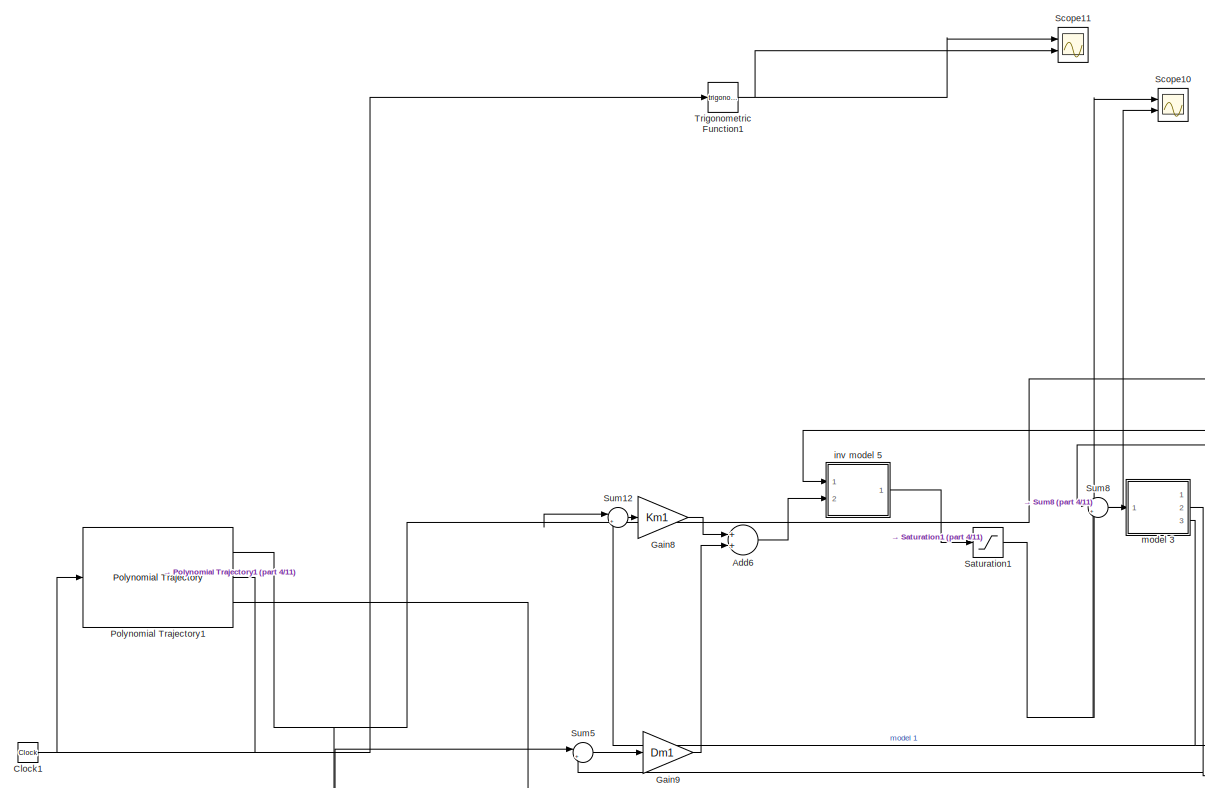
[diagram: root canvas - part 1/11, top right region]
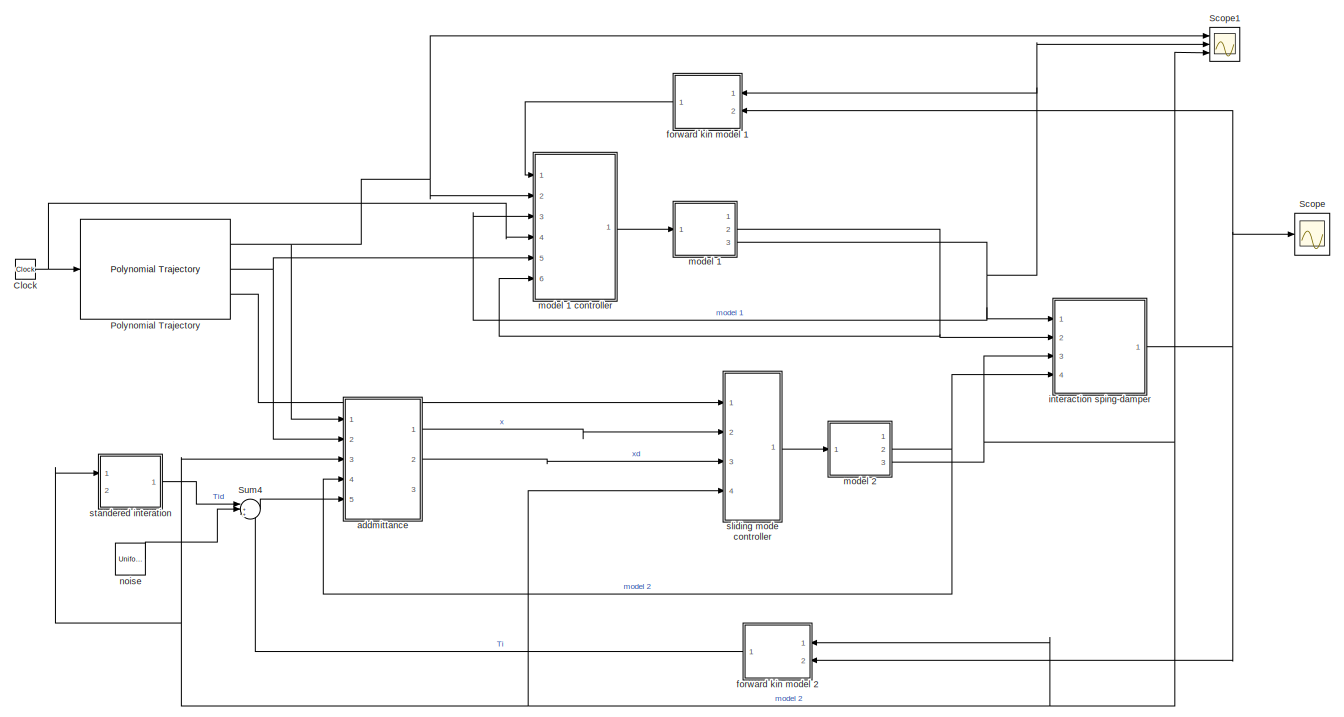
[diagram: root canvas - part 2/11, top left region]
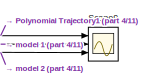
[diagram: root canvas - part 3/11, top right region]
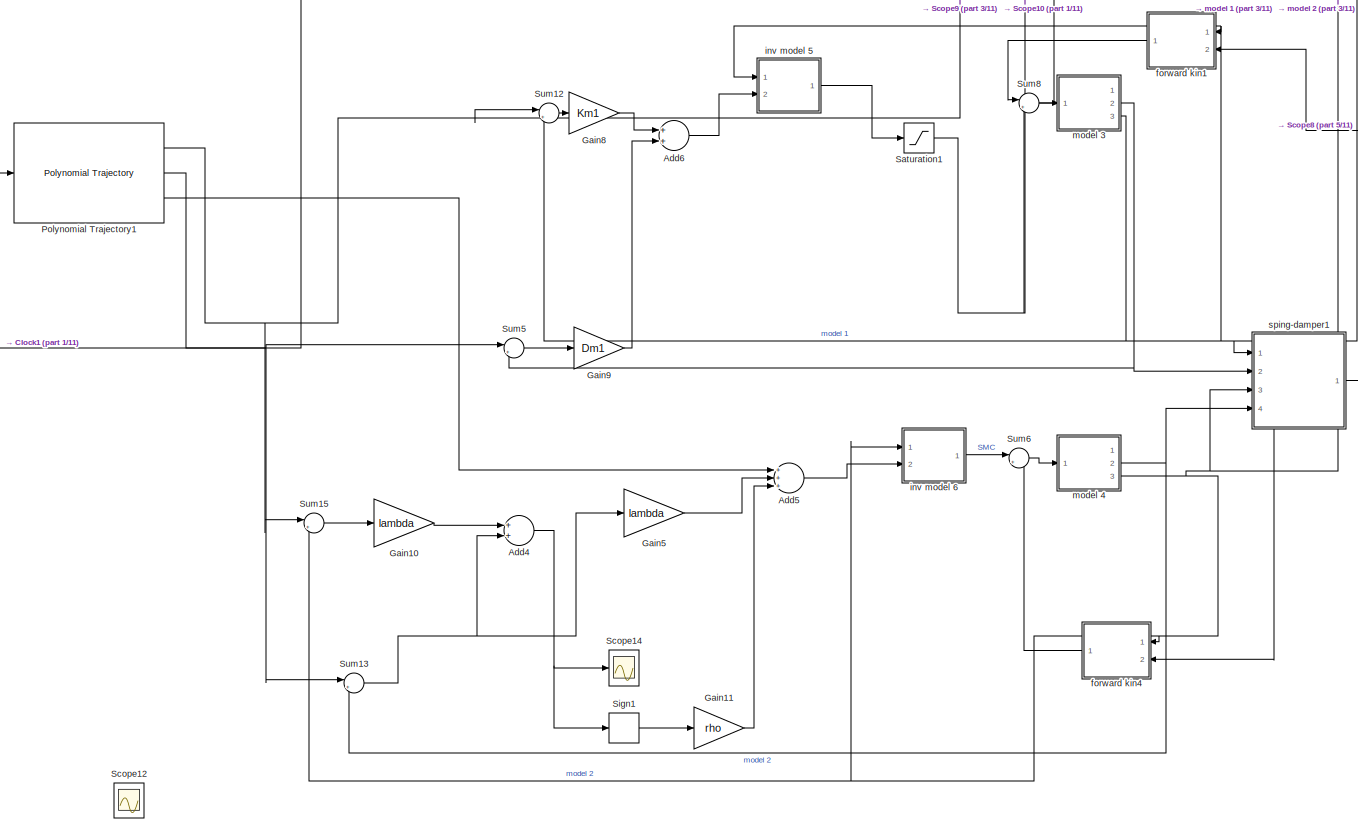
[diagram: root canvas - part 4/11, top right region]
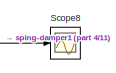
[diagram: root canvas - part 5/11, top right region]
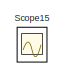
[diagram: root canvas - part 6/11, middle right region]
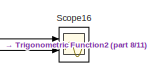
[diagram: root canvas - part 7/11, central region]
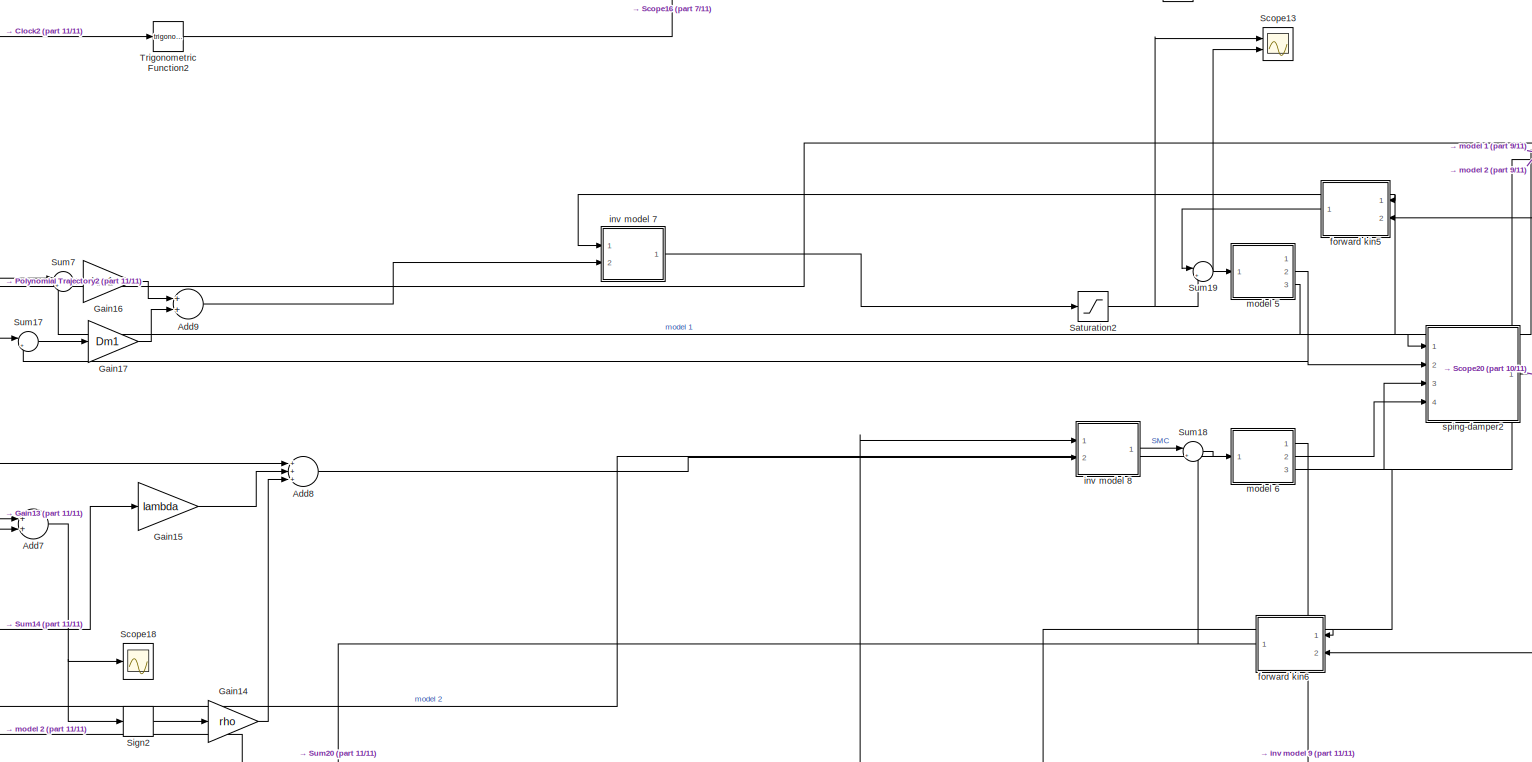
[diagram: root canvas - part 8/11, bottom center region]
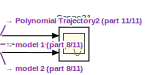
[diagram: root canvas - part 9/11, bottom center region]
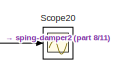
[diagram: root canvas - part 10/11, bottom center region]
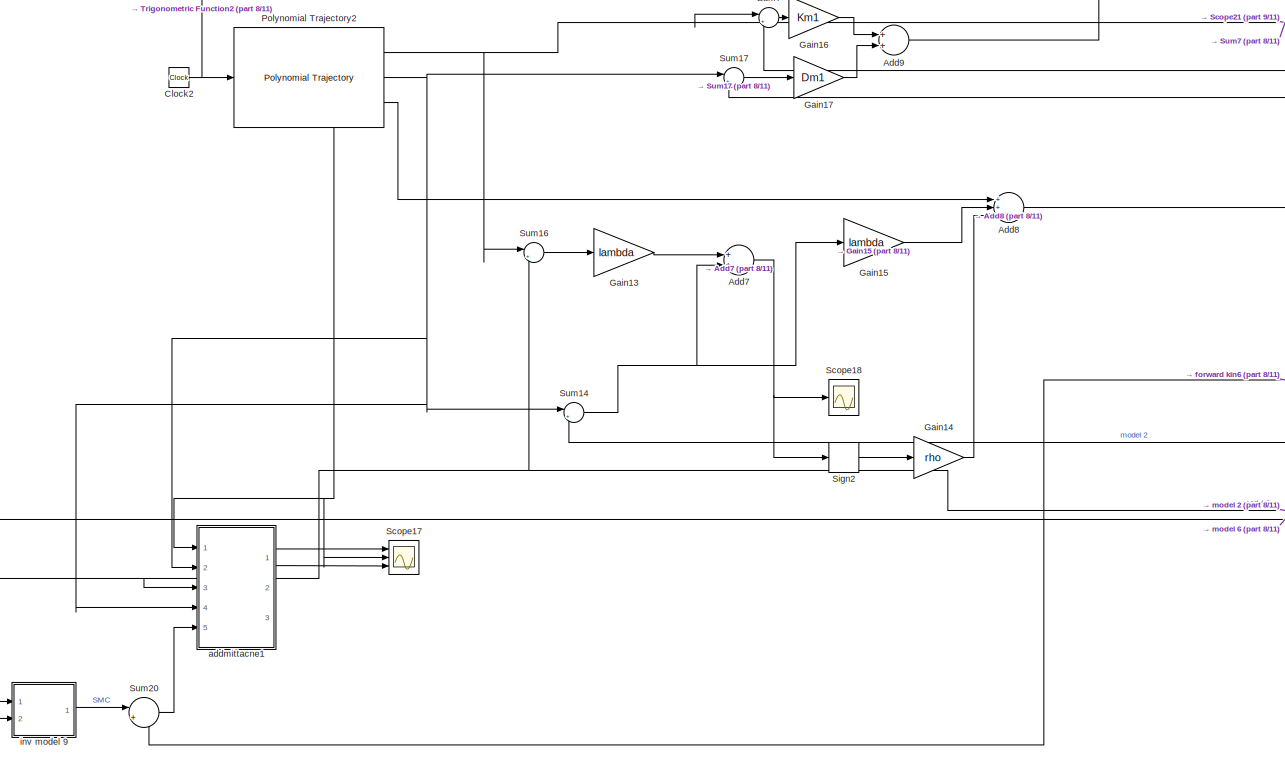
[diagram: root canvas - part 11/11, bottom left region]
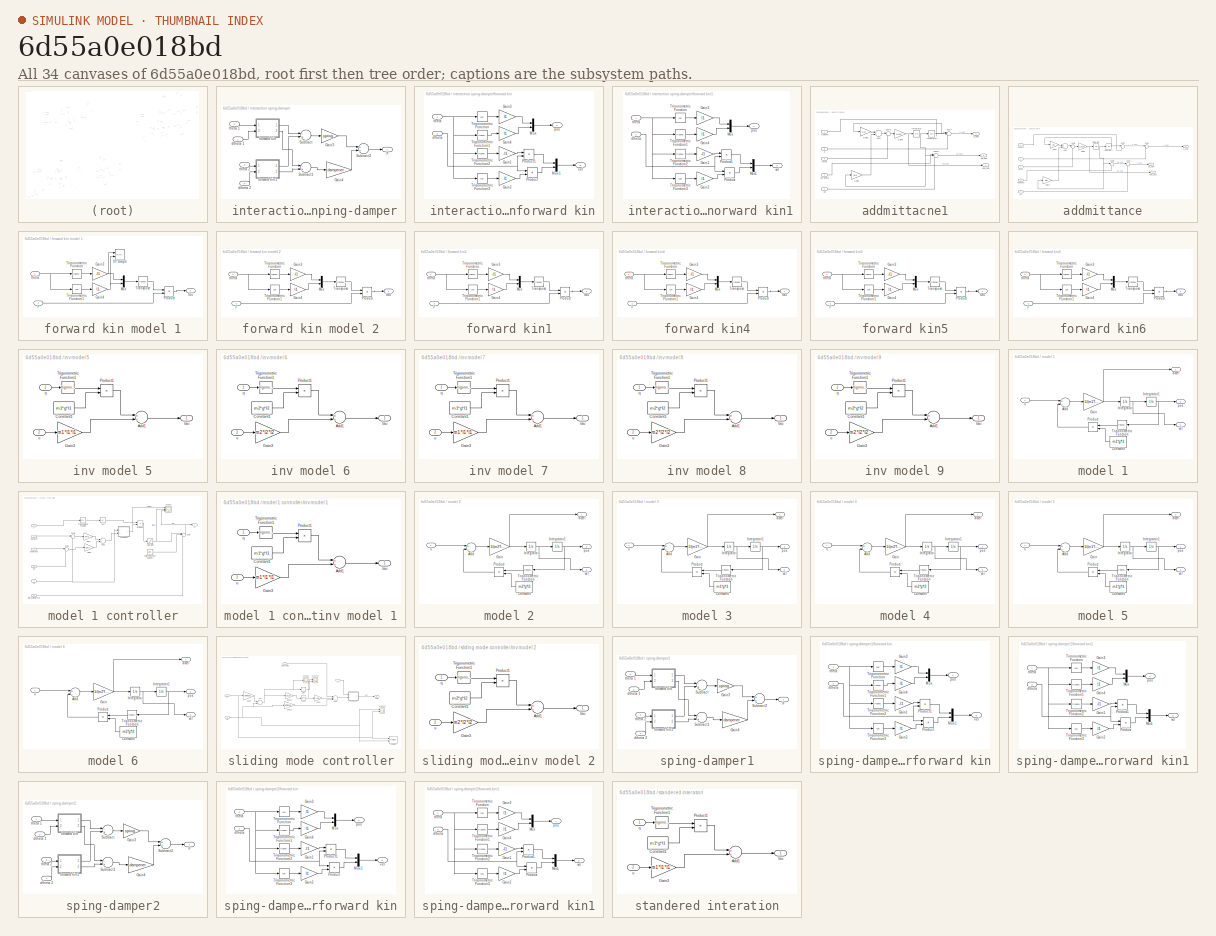
[diagram: thumbnail index - all 34 canvases of the model, root first then tree order]
MODEL slx_6d55a0e018bd
KIND model
CONFIG AbsTol = auto
CONFIG EnableMultiTasking = off
CONFIG FixedStep = auto
CONFIG MaxStep = auto
CONFIG MinStep = auto
CONFIG RelTol = 1e-3
CONFIG SampleTimeConstraint = Unconstrained
CONFIG Solver = VariableStepAuto
CONFIG SolverName = VariableStepAuto
CONFIG StartTime = 0.0
CONFIG StopTime = 10.0
BLOCK [SubSystem]  interaction sping-damper
  Ports = [4, 1]
  RequestExecContextInheritance = off
BLOCK [Outport]  interaction sping-damper/F
  IconDisplay = Port number
BLOCK [Gain]  interaction sping-damper/Gain3
  Gain = spring
  OutDataTypeStr = Inherit: Inherit via internal rule
  ParamDataTypeStr = Inherit: Inherit via internal rule
  SaturateOnIntegerOverflow = off
BLOCK [Gain]  interaction sping-damper/Gain4
  Gain = dampener
  OutDataTypeStr = Inherit: Inherit via internal rule
  ParamDataTypeStr = Inherit: Inherit via internal rule
  SaturateOnIntegerOverflow = off
BLOCK [Sum]  interaction sping-damper/Subtract
  InputSameDT = off
  Inputs = -+
  OutDataTypeStr = Inherit: Inherit via internal rule
  Ports = [2, 1]
  SaturateOnIntegerOverflow = off
BLOCK [Sum]  interaction sping-damper/Subtract1
  InputSameDT = off
  Inputs = -+
  OutDataTypeStr = Inherit: Inherit via internal rule
  Ports = [2, 1]
  SaturateOnIntegerOverflow = off
BLOCK [Sum]  interaction sping-damper/Subtract2
  InputSameDT = off
  OutDataTypeStr = Inherit: Inherit via internal rule
  Ports = [2, 1]
  SaturateOnIntegerOverflow = off
BLOCK [Inport]  interaction sping-damper/dtheta 1
  IconDisplay = Port number
  Port = 2
BLOCK [Inport]  interaction sping-damper/dtheta 2
  IconDisplay = Port number
  Port = 4
BLOCK [SubSystem]  interaction sping-damper/forward kin
  Ports = [2, 2]
  RequestExecContextInheritance = off
BLOCK [Gain]  interaction sping-damper/forward kin/Gain1
  Gain = -l1
  OutDataTypeStr = Inherit: Inherit via internal rule
  ParamDataTypeStr = Inherit: Inherit via internal rule
  SaturateOnIntegerOverflow = off
BLOCK [Gain]  interaction sping-damper/forward kin/Gain2
  Gain = l1
  OutDataTypeStr = Inherit: Inherit via internal rule
  ParamDataTypeStr = Inherit: Inherit via internal rule
  SaturateOnIntegerOverflow = off
BLOCK [Gain]  interaction sping-damper/forward kin/Gain3
  Gain = l1
  OutDataTypeStr = Inherit: Inherit via internal rule
  ParamDataTypeStr = Inherit: Inherit via internal rule
  SaturateOnIntegerOverflow = off
BLOCK [Gain]  interaction sping-damper/forward kin/Gain4
  Gain = l1
  OutDataTypeStr = Inherit: Inherit via internal rule
  ParamDataTypeStr = Inherit: Inherit via internal rule
  SaturateOnIntegerOverflow = off
BLOCK [Mux]  interaction sping-damper/forward kin/Mux
  DisplayOption = bar
  Inputs = 2
  Ports = [2, 1]
BLOCK [Mux]  interaction sping-damper/forward kin/Mux1
  DisplayOption = bar
  Inputs = 2
  Ports = [2, 1]
BLOCK [Product]  interaction sping-damper/forward kin/Product
  InputSameDT = off
  OutDataTypeStr = Inherit: Inherit via internal rule
  Ports = [2, 1]
  RndMeth = Floor
  SaturateOnIntegerOverflow = off
BLOCK [Product]  interaction sping-damper/forward kin/Product1
  InputSameDT = off
  OutDataTypeStr = Inherit: Inherit via internal rule
  Ports = [2, 1]
  RndMeth = Floor
  SaturateOnIntegerOverflow = off
BLOCK [Trigonometry]  interaction sping-damper/forward kin/Trigonometric Function
  Operator = cos
  Ports = [1, 1]
BLOCK [Trigonometry]  interaction sping-damper/forward kin/Trigonometric Function1
  Ports = [1, 1]
BLOCK [Trigonometry]  interaction sping-damper/forward kin/Trigonometric Function2
  Ports = [1, 1]
BLOCK [Trigonometry]  interaction sping-damper/forward kin/Trigonometric Function3
  Operator = cos
  Ports = [1, 1]
BLOCK [Inport]  interaction sping-damper/forward kin/dtheta 
  IconDisplay = Port number
  Port = 2
BLOCK [Outport]  interaction sping-damper/forward kin/pos
  IconDisplay = Port number
BLOCK [Inport]  interaction sping-damper/forward kin/theta 
  IconDisplay = Port number
BLOCK [Outport]  interaction sping-damper/forward kin/vel
  IconDisplay = Port number
  Port = 2
BLOCK [SubSystem]  interaction sping-damper/forward kin1
  Ports = [2, 2]
  RequestExecContextInheritance = off
BLOCK [Gain]  interaction sping-damper/forward kin1/Gain1
  Gain = -l1
  OutDataTypeStr = Inherit: Inherit via internal rule
  ParamDataTypeStr = Inherit: Inherit via internal rule
  SaturateOnIntegerOverflow = off
BLOCK [Gain]  interaction sping-damper/forward kin1/Gain2
  Gain = l1
  OutDataTypeStr = Inherit: Inherit via internal rule
  ParamDataTypeStr = Inherit: Inherit via internal rule
  SaturateOnIntegerOverflow = off
BLOCK [Gain]  interaction sping-damper/forward kin1/Gain3
  Gain = l1
  OutDataTypeStr = Inherit: Inherit via internal rule
  ParamDataTypeStr = Inherit: Inherit via internal rule
  SaturateOnIntegerOverflow = off
BLOCK [Gain]  interaction sping-damper/forward kin1/Gain4
  Gain = l1
  OutDataTypeStr = Inherit: Inherit via internal rule
  ParamDataTypeStr = Inherit: Inherit via internal rule
  SaturateOnIntegerOverflow = off
BLOCK [Mux]  interaction sping-damper/forward kin1/Mux
  DisplayOption = bar
  Inputs = 2
  Ports = [2, 1]
BLOCK [Mux]  interaction sping-damper/forward kin1/Mux1
  DisplayOption = bar
  Inputs = 2
  Ports = [2, 1]
BLOCK [Product]  interaction sping-damper/forward kin1/Product
  InputSameDT = off
  OutDataTypeStr = Inherit: Inherit via internal rule
  Ports = [2, 1]
  RndMeth = Floor
  SaturateOnIntegerOverflow = off
BLOCK [Product]  interaction sping-damper/forward kin1/Product1
  InputSameDT = off
  OutDataTypeStr = Inherit: Inherit via internal rule
  Ports = [2, 1]
  RndMeth = Floor
  SaturateOnIntegerOverflow = off
BLOCK [Trigonometry]  interaction sping-damper/forward kin1/Trigonometric Function
  Operator = cos
  Ports = [1, 1]
BLOCK [Trigonometry]  interaction sping-damper/forward kin1/Trigonometric Function1
  Ports = [1, 1]
BLOCK [Trigonometry]  interaction sping-damper/forward kin1/Trigonometric Function2
  Ports = [1, 1]
BLOCK [Trigonometry]  interaction sping-damper/forward kin1/Trigonometric Function3
  Operator = cos
  Ports = [1, 1]
BLOCK [Inport]  interaction sping-damper/forward kin1/dtheta 
  IconDisplay = Port number
  Port = 2
BLOCK [Outport]  interaction sping-damper/forward kin1/pos
  IconDisplay = Port number
BLOCK [Inport]  interaction sping-damper/forward kin1/theta 
  IconDisplay = Port number
BLOCK [Outport]  interaction sping-damper/forward kin1/vel
  IconDisplay = Port number
  Port = 2
BLOCK [Inport]  interaction sping-damper/theta 1
  IconDisplay = Port number
BLOCK [Inport]  interaction sping-damper/theta 2
  IconDisplay = Port number
  Port = 3
BLOCK [Sum] Add4
  Commented = on
  InputSameDT = off
  OutDataTypeStr = Inherit: Inherit via internal rule
  Ports = [2, 1]
  SaturateOnIntegerOverflow = off
BLOCK [Sum] Add5
  Commented = on
  InputSameDT = off
  Inputs = +++
  OutDataTypeStr = Inherit: Inherit via internal rule
  Ports = [3, 1]
  SaturateOnIntegerOverflow = off
BLOCK [Sum] Add6
  Commented = on
  InputSameDT = off
  OutDataTypeStr = Inherit: Inherit via internal rule
  Ports = [2, 1]
  SaturateOnIntegerOverflow = off
BLOCK [Sum] Add7
  Commented = on
  InputSameDT = off
  OutDataTypeStr = Inherit: Inherit via internal rule
  Ports = [2, 1]
  SaturateOnIntegerOverflow = off
BLOCK [Sum] Add8
  Commented = on
  InputSameDT = off
  Inputs = +++
  OutDataTypeStr = Inherit: Inherit via internal rule
  Ports = [3, 1]
  SaturateOnIntegerOverflow = off
BLOCK [Sum] Add9
  Commented = on
  InputSameDT = off
  OutDataTypeStr = Inherit: Inherit via internal rule
  Ports = [2, 1]
  SaturateOnIntegerOverflow = off
BLOCK [Clock] Clock
BLOCK [Clock] Clock1
  Commented = on
BLOCK [Clock] Clock2
  Commented = on
BLOCK [Gain] Gain10
  Commented = on
  Gain = lambda
  OutDataTypeStr = Inherit: Inherit via internal rule
  ParamDataTypeStr = Inherit: Inherit via internal rule
  SaturateOnIntegerOverflow = off
BLOCK [Gain] Gain11
  Commented = on
  Gain = rho
  OutDataTypeStr = Inherit: Inherit via internal rule
  ParamDataTypeStr = Inherit: Inherit via internal rule
  SaturateOnIntegerOverflow = off
BLOCK [Gain] Gain13
  Commented = on
  Gain = lambda
  OutDataTypeStr = Inherit: Inherit via internal rule
  ParamDataTypeStr = Inherit: Inherit via internal rule
  SaturateOnIntegerOverflow = off
BLOCK [Gain] Gain14
  Commented = on
  Gain = rho
  OutDataTypeStr = Inherit: Inherit via internal rule
  ParamDataTypeStr = Inherit: Inherit via internal rule
  SaturateOnIntegerOverflow = off
BLOCK [Gain] Gain15
  Commented = on
  Gain = lambda
  OutDataTypeStr = Inherit: Inherit via internal rule
  ParamDataTypeStr = Inherit: Inherit via internal rule
  SaturateOnIntegerOverflow = off
BLOCK [Gain] Gain16
  Commented = on
  Gain = Km1
  OutDataTypeStr = Inherit: Inherit via internal rule
  ParamDataTypeStr = Inherit: Inherit via internal rule
  SaturateOnIntegerOverflow = off
BLOCK [Gain] Gain17
  Commented = on
  Gain = Dm1
  OutDataTypeStr = Inherit: Inherit via internal rule
  ParamDataTypeStr = Inherit: Inherit via internal rule
  SaturateOnIntegerOverflow = off
BLOCK [Gain] Gain5
  Commented = on
  Gain = lambda
  OutDataTypeStr = Inherit: Inherit via internal rule
  ParamDataTypeStr = Inherit: Inherit via internal rule
  SaturateOnIntegerOverflow = off
BLOCK [Gain] Gain8
  Commented = on
  Gain = Km1
  OutDataTypeStr = Inherit: Inherit via internal rule
  ParamDataTypeStr = Inherit: Inherit via internal rule
  SaturateOnIntegerOverflow = off
BLOCK [Gain] Gain9
  Commented = on
  Gain = Dm1
  OutDataTypeStr = Inherit: Inherit via internal rule
  ParamDataTypeStr = Inherit: Inherit via internal rule
  SaturateOnIntegerOverflow = off
BLOCK [Reference] Polynomial Trajectory  REF=robotcorelib/Polynomial Trajectory
  Ports = [1, 3]
  SourceBlock = robotcorelib/Polynomial Trajectory
  SourceProductBaseCode = RO
  SourceProductName = Robotics System Toolbox
  SourceType = robotics.slcore.internal.block.PolyTrajSys
BLOCK [Reference] Polynomial Trajectory1  REF=robotcorelib/Polynomial Trajectory
  Commented = on
  Ports = [1, 3]
  SourceBlock = robotcorelib/Polynomial Trajectory
  SourceProductBaseCode = RO
  SourceProductName = Robotics System Toolbox
  SourceType = robotics.slcore.internal.block.PolyTrajSys
BLOCK [Reference] Polynomial Trajectory2  REF=robotcorelib/Polynomial Trajectory
  Commented = on
  Ports = [1, 3]
  SourceBlock = robotcorelib/Polynomial Trajectory
  SourceProductBaseCode = RO
  SourceProductName = Robotics System Toolbox
  SourceType = robotics.slcore.internal.block.PolyTrajSys
BLOCK [Saturate] Saturation1
  Commented = on
  InputPortMap = u0
  LowerLimit = -1.0
  Ports = [1, 1]
  UpperLimit = 1.0
BLOCK [Saturate] Saturation2
  Commented = on
  InputPortMap = u0
  LowerLimit = -1.0
  Ports = [1, 1]
  UpperLimit = 1.0
BLOCK [Scope] Scope
  Floating = off
  NumInputPorts = 1
  Ports = [1]
  ScopeSpecificationString = Simulink.scopes.TimeScopeBlockCfg('CurrentConfiguration', extmgr.ConfigurationSet(extmgr.Configuration('Core','General UI',true),extmgr.Configuration('Core','Source UI',true),extmgr.Configuration('Sources','WiredSimulink',true,'DataLoggingVariableName','ScopeData1'),extmgr.Configuration('Visuals','Time Domain',true,'SerializedDisplays',{struct('MinYLimReal','-10.50339','MaxYLimReal','20.02918','YL...<+1448ch>
BLOCK [Scope] Scope1
  Floating = off
  NumInputPorts = 3
  Ports = [3]
  ScopeSpecificationString = Simulink.scopes.TimeScopeBlockCfg('CurrentConfiguration', extmgr.ConfigurationSet(extmgr.Configuration('Core','General UI',true),extmgr.Configuration('Core','Source UI',true),extmgr.Configuration('Sources','WiredSimulink',true,'DataLoggingVariableName','ScopeData2'),extmgr.Configuration('Visuals','Time Domain',true,'SerializedDisplays',{struct('MinYLimReal','-3.54168','MaxYLimReal','0.45903','YLab...<+1514ch>
BLOCK [Scope] Scope10
  Commented = on
  Floating = off
  NumInputPorts = 2
  Ports = [2]
  ScopeSpecificationString = Simulink.scopes.TimeScopeBlockCfg('CurrentConfiguration', extmgr.ConfigurationSet(extmgr.Configuration('Core','General UI',true),extmgr.Configuration('Core','Source UI',true),extmgr.Configuration('Sources','WiredSimulink',true,'DataLoggingVariableName','ScopeData1'),extmgr.Configuration('Visuals','Time Domain',true,'SerializedDisplays',{struct('MinYLimReal','-11.52009','MaxYLimReal','5.83051','YLa...<+1406ch>
BLOCK [Scope] Scope11
  Commented = on
  Floating = off
  NumInputPorts = 2
  Ports = [2]
  ScopeSpecificationString = Simulink.scopes.TimeScopeBlockCfg('CurrentConfiguration', extmgr.ConfigurationSet(extmgr.Configuration('Core','General UI',true),extmgr.Configuration('Core','Source UI',true),extmgr.Configuration('Sources','WiredSimulink',true,'DataLoggingVariableName','ScopeData2'),extmgr.Configuration('Visuals','Time Domain',true,'SerializedDisplays',{struct('MinYLimReal','-1.24869','MaxYLimReal','1.24897','YLab...<+1492ch>
BLOCK [Scope] Scope12
  Commented = on
  Floating = off
  NumInputPorts = 2
  Ports = [2]
  ScopeSpecificationString = Simulink.scopes.TimeScopeBlockCfg('CurrentConfiguration', extmgr.ConfigurationSet(extmgr.Configuration('Core','General UI',true),extmgr.Configuration('Core','Source UI',true),extmgr.Configuration('Sources','WiredSimulink',true,'DataLoggingVariableName','ScopeData3'),extmgr.Configuration('Visuals','Time Domain',true,'SerializedDisplays',{struct('MinYLimReal','-3.65929','MaxYLimReal','1.5177','YLabe...<+1419ch>
BLOCK [Scope] Scope13
  Commented = on
  Floating = off
  NumInputPorts = 2
  Ports = [2]
  ScopeSpecificationString = Simulink.scopes.TimeScopeBlockCfg('CurrentConfiguration', extmgr.ConfigurationSet(extmgr.Configuration('Core','General UI',true),extmgr.Configuration('Core','Source UI',true),extmgr.Configuration('Sources','WiredSimulink',true,'DataLoggingVariableName','ScopeData4'),extmgr.Configuration('Visuals','Time Domain',true,'SerializedDisplays',{struct('MinYLimReal','-11.52009','MaxYLimReal','5.83051','YLa...<+1406ch>
BLOCK [Scope] Scope14
  Commented = on
  Floating = off
  NumInputPorts = 1
  Ports = [1]
  ScopeSpecificationString = Simulink.scopes.TimeScopeBlockCfg('CurrentConfiguration', extmgr.ConfigurationSet(extmgr.Configuration('Core','General UI',true),extmgr.Configuration('Core','Source UI',true),extmgr.Configuration('Sources','WiredSimulink',true,'DataLoggingVariableName','ScopeData5'),extmgr.Configuration('Visuals','Time Domain',true,'SerializedDisplays',{struct('MinYLimReal','-0.66726','MaxYLimReal','6.00513','YLab...<+1387ch>
BLOCK [Scope] Scope15
  Commented = on
  Floating = off
  NumInputPorts = 2
  Ports = [2]
  ScopeSpecificationString = Simulink.scopes.TimeScopeBlockCfg('CurrentConfiguration', extmgr.ConfigurationSet(extmgr.Configuration('Core','General UI',true),extmgr.Configuration('Core','Source UI',true),extmgr.Configuration('Sources','WiredSimulink',true,'DataLoggingVariableName','ScopeData6'),extmgr.Configuration('Visuals','Time Domain',true,'SerializedDisplays',{struct('MinYLimReal','-0.12527','MaxYLimReal','1.12746','YLab...<+1393ch>
BLOCK [Scope] Scope16
  Commented = on
  Floating = off
  NumInputPorts = 2
  Ports = [2]
  ScopeSpecificationString = Simulink.scopes.TimeScopeBlockCfg('CurrentConfiguration', extmgr.ConfigurationSet(extmgr.Configuration('Core','General UI',true),extmgr.Configuration('Core','Source UI',true),extmgr.Configuration('Sources','WiredSimulink',true,'DataLoggingVariableName','ScopeData9'),extmgr.Configuration('Visuals','Time Domain',true,'SerializedDisplays',{struct('MinYLimReal','-1.24869','MaxYLimReal','1.24897','YLab...<+1492ch>
BLOCK [Scope] Scope17
  Commented = on
  Floating = off
  NumInputPorts = 3
  Ports = [3]
  ScopeSpecificationString = Simulink.scopes.TimeScopeBlockCfg('CurrentConfiguration', extmgr.ConfigurationSet(extmgr.Configuration('Core','General UI',true),extmgr.Configuration('Core','Source UI',true),extmgr.Configuration('Sources','WiredSimulink',true,'DataLoggingVariableName','ScopeData10'),extmgr.Configuration('Visuals','Time Domain',true,'SerializedDisplays',{struct('MinYLimReal','-10.10896','MaxYLimReal','8.77223','YL...<+1530ch>
BLOCK [Scope] Scope18
  Commented = on
  Floating = off
  NumInputPorts = 1
  Ports = [1]
  ScopeSpecificationString = Simulink.scopes.TimeScopeBlockCfg('CurrentConfiguration', extmgr.ConfigurationSet(extmgr.Configuration('Core','General UI',true),extmgr.Configuration('Core','Source UI',true),extmgr.Configuration('Sources','WiredSimulink',true,'DataLoggingVariableName','ScopeData11'),extmgr.Configuration('Visuals','Time Domain',true,'SerializedDisplays',{struct('MinYLimReal','-0.02538','MaxYLimReal','0.22828','YLa...<+1388ch>
BLOCK [Scope] Scope20
  Commented = on
  Floating = off
  NumInputPorts = 1
  Ports = [1]
  ScopeSpecificationString = Simulink.scopes.TimeScopeBlockCfg('CurrentConfiguration', extmgr.ConfigurationSet(extmgr.Configuration('Core','General UI',true),extmgr.Configuration('Core','Source UI',true),extmgr.Configuration('Sources','WiredSimulink',true,'DataLoggingVariableName','ScopeData13'),extmgr.Configuration('Visuals','Time Domain',true,'SerializedDisplays',{struct('MinYLimReal','-21982.80538','MaxYLimReal','24802.824...<+1447ch>
BLOCK [Scope] Scope21
  Commented = on
  Floating = off
  NumInputPorts = 3
  Ports = [3]
  ScopeSpecificationString = Simulink.scopes.TimeScopeBlockCfg('CurrentConfiguration', extmgr.ConfigurationSet(extmgr.Configuration('Core','General UI',true),extmgr.Configuration('Core','Source UI',true),extmgr.Configuration('Sources','WiredSimulink',true,'DataLoggingVariableName','ScopeData14'),extmgr.Configuration('Visuals','Time Domain',true,'SerializedDisplays',{struct('MinYLimReal','-10.10896','MaxYLimReal','1.80706','YL...<+1522ch>
BLOCK [Scope] Scope8
  Commented = on
  Floating = off
  NumInputPorts = 1
  Ports = [1]
  ScopeSpecificationString = Simulink.scopes.TimeScopeBlockCfg('CurrentConfiguration', extmgr.ConfigurationSet(extmgr.Configuration('Core','General UI',true),extmgr.Configuration('Core','Source UI',true),extmgr.Configuration('Sources','WiredSimulink',true,'DataLoggingVariableName','ScopeData7'),extmgr.Configuration('Visuals','Time Domain',true,'SerializedDisplays',{struct('MinYLimReal','-21982.80538','MaxYLimReal','24802.8241...<+1446ch>
BLOCK [Scope] Scope9
  Commented = on
  Floating = off
  NumInputPorts = 3
  Ports = [3]
  ScopeSpecificationString = Simulink.scopes.TimeScopeBlockCfg('CurrentConfiguration', extmgr.ConfigurationSet(extmgr.Configuration('Core','General UI',true),extmgr.Configuration('Core','Source UI',true),extmgr.Configuration('Sources','WiredSimulink',true,'DataLoggingVariableName','ScopeData8'),extmgr.Configuration('Visuals','Time Domain',true,'SerializedDisplays',{struct('MinYLimReal','-10.10896','MaxYLimReal','1.80706','YLa...<+1521ch>
BLOCK [Signum] Sign1
  Commented = on
BLOCK [Signum] Sign2
  Commented = on
BLOCK [Sum] Sum12
  Commented = on
  IconShape = round
  InputSameDT = off
  Inputs = |+-
  OutDataTypeStr = Inherit: Inherit via internal rule
  Ports = [2, 1]
  SaturateOnIntegerOverflow = off
BLOCK [Sum] Sum13
  Commented = on
  IconShape = round
  InputSameDT = off
  Inputs = |+-
  OutDataTypeStr = Inherit: Inherit via internal rule
  Ports = [2, 1]
  SaturateOnIntegerOverflow = off
BLOCK [Sum] Sum14
  Commented = on
  IconShape = round
  InputSameDT = off
  Inputs = |+-
  OutDataTypeStr = Inherit: Inherit via internal rule
  Ports = [2, 1]
  SaturateOnIntegerOverflow = off
BLOCK [Sum] Sum15
  Commented = on
  IconShape = round
  InputSameDT = off
  Inputs = |+-
  OutDataTypeStr = Inherit: Inherit via internal rule
  Ports = [2, 1]
  SaturateOnIntegerOverflow = off
BLOCK [Sum] Sum16
  Commented = on
  IconShape = round
  InputSameDT = off
  Inputs = |+-
  OutDataTypeStr = Inherit: Inherit via internal rule
  Ports = [2, 1]
  SaturateOnIntegerOverflow = off
BLOCK [Sum] Sum17
  Commented = on
  IconShape = round
  InputSameDT = off
  Inputs = |+-
  OutDataTypeStr = Inherit: Inherit via internal rule
  Ports = [2, 1]
  SaturateOnIntegerOverflow = off
BLOCK [Sum] Sum18
  Commented = on
  IconShape = round
  InputSameDT = off
  Inputs = |+-
  OutDataTypeStr = Inherit: Inherit via internal rule
  Ports = [2, 1]
  SaturateOnIntegerOverflow = off
BLOCK [Sum] Sum19
  Commented = on
  IconShape = round
  InputSameDT = off
  Inputs = |++
  OutDataTypeStr = Inherit: Inherit via internal rule
  Ports = [2, 1]
  SaturateOnIntegerOverflow = off
BLOCK [Sum] Sum20
  Commented = on
  IconShape = round
  InputSameDT = off
  Inputs = |+-
  OutDataTypeStr = Inherit: Inherit via internal rule
  Ports = [2, 1]
  SaturateOnIntegerOverflow = off
BLOCK [Sum] Sum4
  IconShape = round
  InputSameDT = off
  Inputs = |++-
  OutDataTypeStr = Inherit: Inherit via internal rule
  Ports = [3, 1]
  SaturateOnIntegerOverflow = off
BLOCK [Sum] Sum5
  Commented = on
  IconShape = round
  InputSameDT = off
  Inputs = |+-
  OutDataTypeStr = Inherit: Inherit via internal rule
  Ports = [2, 1]
  SaturateOnIntegerOverflow = off
BLOCK [Sum] Sum6
  Commented = on
  IconShape = round
  InputSameDT = off
  Inputs = |+-
  OutDataTypeStr = Inherit: Inherit via internal rule
  Ports = [2, 1]
  SaturateOnIntegerOverflow = off
BLOCK [Sum] Sum7
  Commented = on
  IconShape = round
  InputSameDT = off
  Inputs = |+-
  OutDataTypeStr = Inherit: Inherit via internal rule
  Ports = [2, 1]
  SaturateOnIntegerOverflow = off
BLOCK [Sum] Sum8
  Commented = on
  IconShape = round
  InputSameDT = off
  Inputs = |++
  OutDataTypeStr = Inherit: Inherit via internal rule
  Ports = [2, 1]
  SaturateOnIntegerOverflow = off
BLOCK [Trigonometry] Trigonometric Function1
  Commented = on
  Ports = [1, 1]
BLOCK [Trigonometry] Trigonometric Function2
  Commented = on
  Ports = [1, 1]
BLOCK [SubSystem] addmittacne1
  Commented = on
  Ports = [5, 3]
  RequestExecContextInheritance = off
BLOCK [Sum] addmittacne1/Add1
  InputSameDT = off
  OutDataTypeStr = Inherit: Inherit via internal rule
  Ports = [2, 1]
  SaturateOnIntegerOverflow = off
BLOCK [Gain] addmittacne1/Gain3
  Gain = Kd
  OutDataTypeStr = Inherit: Inherit via internal rule
  ParamDataTypeStr = Inherit: Inherit via internal rule
  SaturateOnIntegerOverflow = off
BLOCK [Gain] addmittacne1/Gain4
  Gain = Bd
  OutDataTypeStr = Inherit: Inherit via internal rule
  ParamDataTypeStr = Inherit: Inherit via internal rule
  SaturateOnIntegerOverflow = off
BLOCK [Gain] addmittacne1/Gain5
  Gain = 1/Md
  OutDataTypeStr = Inherit: Inherit via internal rule
  ParamDataTypeStr = Inherit: Inherit via internal rule
  SaturateOnIntegerOverflow = off
BLOCK [Integrator] addmittacne1/Integrator
  Ports = [1, 1]
BLOCK [Integrator] addmittacne1/Integrator1
  InitialCondition = -3
  Ports = [1, 1]
BLOCK [Sum] addmittacne1/Sum6
  IconShape = round
  InputSameDT = off
  Inputs = |-+
  OutDataTypeStr = Inherit: Inherit via internal rule
  Ports = [2, 1]
  SaturateOnIntegerOverflow = off
BLOCK [Sum] addmittacne1/Sum7
  IconShape = round
  InputSameDT = off
  Inputs = |++-
  OutDataTypeStr = Inherit: Inherit via internal rule
  Ports = [3, 1]
  SaturateOnIntegerOverflow = off
BLOCK [Sum] addmittacne1/Sum8
  IconShape = round
  InputSameDT = off
  Inputs = |++-
  OutDataTypeStr = Inherit: Inherit via internal rule
  Ports = [3, 1]
  SaturateOnIntegerOverflow = off
BLOCK [Inport] addmittacne1/force
  IconDisplay = Port number
  Port = 5
BLOCK [Inport] addmittacne1/q
  IconDisplay = Port number
  Port = 3
BLOCK [Inport] addmittacne1/q desird
  IconDisplay = Port number
BLOCK [Outport] addmittacne1/q_add
  IconDisplay = Port number
BLOCK [Inport] addmittacne1/qd
  IconDisplay = Port number
  Port = 4
BLOCK [Inport] addmittacne1/qd desird
  IconDisplay = Port number
  Port = 2
BLOCK [Outport] addmittacne1/qd_add
  IconDisplay = Port number
  Port = 2
BLOCK [Outport] addmittacne1/qdd_add
  IconDisplay = Port number
  Port = 3
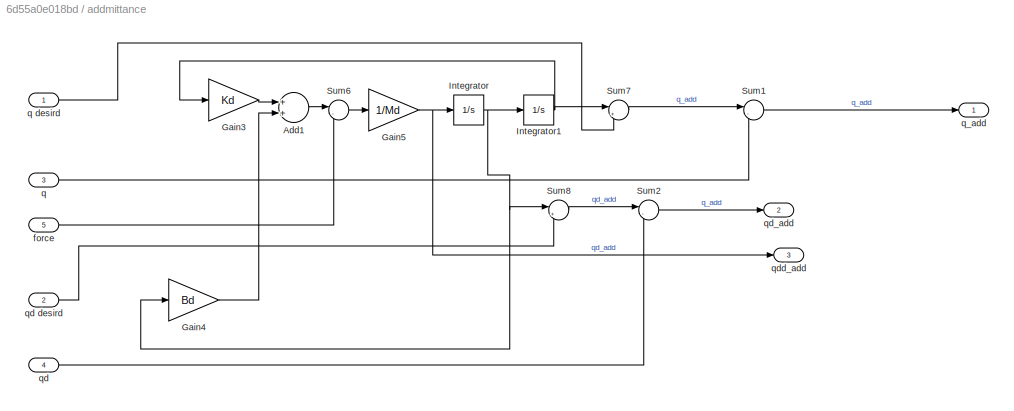
BLOCK [SubSystem] addmittance
  Ports = [5, 3]
  RequestExecContextInheritance = off
BLOCK [Sum] addmittance/Add1
  InputSameDT = off
  OutDataTypeStr = Inherit: Inherit via internal rule
  Ports = [2, 1]
  SaturateOnIntegerOverflow = off
BLOCK [Gain] addmittance/Gain3
  Gain = Kd
  OutDataTypeStr = Inherit: Inherit via internal rule
  ParamDataTypeStr = Inherit: Inherit via internal rule
  SaturateOnIntegerOverflow = off
BLOCK [Gain] addmittance/Gain4
  Gain = Bd
  OutDataTypeStr = Inherit: Inherit via internal rule
  ParamDataTypeStr = Inherit: Inherit via internal rule
  SaturateOnIntegerOverflow = off
BLOCK [Gain] addmittance/Gain5
  Gain = 1/Md
  OutDataTypeStr = Inherit: Inherit via internal rule
  ParamDataTypeStr = Inherit: Inherit via internal rule
  SaturateOnIntegerOverflow = off
BLOCK [Integrator] addmittance/Integrator
  Ports = [1, 1]
BLOCK [Integrator] addmittance/Integrator1
  InitialCondition = pi
  Ports = [1, 1]
BLOCK [Sum] addmittance/Sum1
  IconShape = round
  InputSameDT = off
  Inputs = |-+
  OutDataTypeStr = Inherit: Inherit via internal rule
  Ports = [2, 1]
  SaturateOnIntegerOverflow = off
BLOCK [Sum] addmittance/Sum2
  IconShape = round
  InputSameDT = off
  Inputs = |-+
  OutDataTypeStr = Inherit: Inherit via internal rule
  Ports = [2, 1]
  SaturateOnIntegerOverflow = off
BLOCK [Sum] addmittance/Sum6
  IconShape = round
  InputSameDT = off
  Inputs = |-+
  OutDataTypeStr = Inherit: Inherit via internal rule
  Ports = [2, 1]
  SaturateOnIntegerOverflow = off
BLOCK [Sum] addmittance/Sum7
  IconShape = round
  InputSameDT = off
  Inputs = |++
  OutDataTypeStr = Inherit: Inherit via internal rule
  Ports = [2, 1]
  SaturateOnIntegerOverflow = off
BLOCK [Sum] addmittance/Sum8
  IconShape = round
  InputSameDT = off
  Inputs = |++
  OutDataTypeStr = Inherit: Inherit via internal rule
  Ports = [2, 1]
  SaturateOnIntegerOverflow = off
BLOCK [Inport] addmittance/force
  IconDisplay = Port number
  Port = 5
BLOCK [Inport] addmittance/q
  IconDisplay = Port number
  Port = 3
BLOCK [Inport] addmittance/q desird
  IconDisplay = Port number
BLOCK [Outport] addmittance/q_add
  IconDisplay = Port number
BLOCK [Inport] addmittance/qd
  IconDisplay = Port number
  Port = 4
BLOCK [Inport] addmittance/qd desird
  IconDisplay = Port number
  Port = 2
BLOCK [Outport] addmittance/qd_add
  IconDisplay = Port number
  Port = 2
BLOCK [Outport] addmittance/qdd_add
  IconDisplay = Port number
  Port = 3
BLOCK [SubSystem] forward kin model 1
  Ports = [2, 1]
  RequestExecContextInheritance = off
BLOCK [Inport] forward kin model 1/F
  IconDisplay = Port number
  Port = 2
BLOCK [Gain] forward kin model 1/Gain3
  Gain = -l1
  OutDataTypeStr = Inherit: Inherit via internal rule
  ParamDataTypeStr = Inherit: Inherit via internal rule
  SaturateOnIntegerOverflow = off
BLOCK [Gain] forward kin model 1/Gain4
  Gain = l1
  OutDataTypeStr = Inherit: Inherit via internal rule
  ParamDataTypeStr = Inherit: Inherit via internal rule
  SaturateOnIntegerOverflow = off
BLOCK [Mux] forward kin model 1/Mux
  DisplayOption = bar
  Inputs = 2
  Ports = [2, 1]
BLOCK [Product] forward kin model 1/Product
  InputSameDT = off
  Multiplication = Matrix(*)
  OutDataTypeStr = Inherit: Inherit via internal rule
  Ports = [2, 1]
  RndMeth = Floor
  SaturateOnIntegerOverflow = off
BLOCK [Math] forward kin model 1/Transpose
  Operator = transpose
  Ports = [1, 1]
  SignedPower = off
BLOCK [Trigonometry] forward kin model 1/Trigonometric Function
  Ports = [1, 1]
BLOCK [Trigonometry] forward kin model 1/Trigonometric Function1
  Operator = cos
  Ports = [1, 1]
BLOCK [Reference] forward kin model 1/XY Graph  REF=simulink/Sinks/XY Graph
  Ports = [2]
  SourceBlock = simulink/Sinks/XY Graph
  SourceProductBaseCode = SL
  SourceProductName = Simulink
  SourceType = XY scope.
BLOCK [Outport] forward kin model 1/tau 
  IconDisplay = Port number
BLOCK [Inport] forward kin model 1/theta 
  IconDisplay = Port number
BLOCK [SubSystem] forward kin model 2
  Ports = [2, 1]
  RequestExecContextInheritance = off
BLOCK [Inport] forward kin model 2/F
  IconDisplay = Port number
  Port = 2
BLOCK [Gain] forward kin model 2/Gain3
  Gain = -l1
  OutDataTypeStr = Inherit: Inherit via internal rule
  ParamDataTypeStr = Inherit: Inherit via internal rule
  SaturateOnIntegerOverflow = off
BLOCK [Gain] forward kin model 2/Gain4
  Gain = l1
  OutDataTypeStr = Inherit: Inherit via internal rule
  ParamDataTypeStr = Inherit: Inherit via internal rule
  SaturateOnIntegerOverflow = off
BLOCK [Mux] forward kin model 2/Mux
  DisplayOption = bar
  Inputs = 2
  Ports = [2, 1]
BLOCK [Product] forward kin model 2/Product
  InputSameDT = off
  Multiplication = Matrix(*)
  OutDataTypeStr = Inherit: Inherit via internal rule
  Ports = [2, 1]
  RndMeth = Floor
  SaturateOnIntegerOverflow = off
BLOCK [Math] forward kin model 2/Transpose
  Operator = transpose
  Ports = [1, 1]
  SignedPower = off
BLOCK [Trigonometry] forward kin model 2/Trigonometric Function
  Ports = [1, 1]
BLOCK [Trigonometry] forward kin model 2/Trigonometric Function1
  Operator = cos
  Ports = [1, 1]
BLOCK [Outport] forward kin model 2/tau 
  IconDisplay = Port number
BLOCK [Inport] forward kin model 2/theta 
  IconDisplay = Port number
BLOCK [SubSystem] forward kin1
  Commented = on
  Ports = [2, 1]
  RequestExecContextInheritance = off
BLOCK [Inport] forward kin1/F
  IconDisplay = Port number
  Port = 2
BLOCK [Gain] forward kin1/Gain3
  Gain = -l1
  OutDataTypeStr = Inherit: Inherit via internal rule
  ParamDataTypeStr = Inherit: Inherit via internal rule
  SaturateOnIntegerOverflow = off
BLOCK [Gain] forward kin1/Gain4
  Gain = l1
  OutDataTypeStr = Inherit: Inherit via internal rule
  ParamDataTypeStr = Inherit: Inherit via internal rule
  SaturateOnIntegerOverflow = off
BLOCK [Mux] forward kin1/Mux
  DisplayOption = bar
  Inputs = 2
  Ports = [2, 1]
BLOCK [Product] forward kin1/Product
  InputSameDT = off
  Multiplication = Matrix(*)
  OutDataTypeStr = Inherit: Inherit via internal rule
  Ports = [2, 1]
  RndMeth = Floor
  SaturateOnIntegerOverflow = off
BLOCK [Math] forward kin1/Transpose
  Operator = transpose
  Ports = [1, 1]
  SignedPower = off
BLOCK [Trigonometry] forward kin1/Trigonometric Function
  Ports = [1, 1]
BLOCK [Trigonometry] forward kin1/Trigonometric Function1
  Operator = cos
  Ports = [1, 1]
BLOCK [Outport] forward kin1/tau 
  IconDisplay = Port number
BLOCK [Inport] forward kin1/theta 
  IconDisplay = Port number
BLOCK [SubSystem] forward kin4
  Commented = on
  Ports = [2, 1]
  RequestExecContextInheritance = off
BLOCK [Inport] forward kin4/F
  IconDisplay = Port number
  Port = 2
BLOCK [Gain] forward kin4/Gain3
  Gain = -l1
  OutDataTypeStr = Inherit: Inherit via internal rule
  ParamDataTypeStr = Inherit: Inherit via internal rule
  SaturateOnIntegerOverflow = off
BLOCK [Gain] forward kin4/Gain4
  Gain = l1
  OutDataTypeStr = Inherit: Inherit via internal rule
  ParamDataTypeStr = Inherit: Inherit via internal rule
  SaturateOnIntegerOverflow = off
BLOCK [Mux] forward kin4/Mux
  DisplayOption = bar
  Inputs = 2
  Ports = [2, 1]
BLOCK [Product] forward kin4/Product
  InputSameDT = off
  Multiplication = Matrix(*)
  OutDataTypeStr = Inherit: Inherit via internal rule
  Ports = [2, 1]
  RndMeth = Floor
  SaturateOnIntegerOverflow = off
BLOCK [Math] forward kin4/Transpose
  Operator = transpose
  Ports = [1, 1]
  SignedPower = off
BLOCK [Trigonometry] forward kin4/Trigonometric Function
  Ports = [1, 1]
BLOCK [Trigonometry] forward kin4/Trigonometric Function1
  Operator = cos
  Ports = [1, 1]
BLOCK [Outport] forward kin4/tau 
  IconDisplay = Port number
BLOCK [Inport] forward kin4/theta 
  IconDisplay = Port number
BLOCK [SubSystem] forward kin5
  Commented = on
  Ports = [2, 1]
  RequestExecContextInheritance = off
BLOCK [Inport] forward kin5/F
  IconDisplay = Port number
  Port = 2
BLOCK [Gain] forward kin5/Gain3
  Gain = -l1
  OutDataTypeStr = Inherit: Inherit via internal rule
  ParamDataTypeStr = Inherit: Inherit via internal rule
  SaturateOnIntegerOverflow = off
BLOCK [Gain] forward kin5/Gain4
  Gain = l1
  OutDataTypeStr = Inherit: Inherit via internal rule
  ParamDataTypeStr = Inherit: Inherit via internal rule
  SaturateOnIntegerOverflow = off
BLOCK [Mux] forward kin5/Mux
  DisplayOption = bar
  Inputs = 2
  Ports = [2, 1]
BLOCK [Product] forward kin5/Product
  InputSameDT = off
  Multiplication = Matrix(*)
  OutDataTypeStr = Inherit: Inherit via internal rule
  Ports = [2, 1]
  RndMeth = Floor
  SaturateOnIntegerOverflow = off
BLOCK [Math] forward kin5/Transpose
  Operator = transpose
  Ports = [1, 1]
  SignedPower = off
BLOCK [Trigonometry] forward kin5/Trigonometric Function
  Ports = [1, 1]
BLOCK [Trigonometry] forward kin5/Trigonometric Function1
  Operator = cos
  Ports = [1, 1]
BLOCK [Outport] forward kin5/tau 
  IconDisplay = Port number
BLOCK [Inport] forward kin5/theta 
  IconDisplay = Port number
BLOCK [SubSystem] forward kin6
  Commented = on
  Ports = [2, 1]
  RequestExecContextInheritance = off
BLOCK [Inport] forward kin6/F
  IconDisplay = Port number
  Port = 2
BLOCK [Gain] forward kin6/Gain3
  Gain = -l1
  OutDataTypeStr = Inherit: Inherit via internal rule
  ParamDataTypeStr = Inherit: Inherit via internal rule
  SaturateOnIntegerOverflow = off
BLOCK [Gain] forward kin6/Gain4
  Gain = l1
  OutDataTypeStr = Inherit: Inherit via internal rule
  ParamDataTypeStr = Inherit: Inherit via internal rule
  SaturateOnIntegerOverflow = off
BLOCK [Mux] forward kin6/Mux
  DisplayOption = bar
  Inputs = 2
  Ports = [2, 1]
BLOCK [Product] forward kin6/Product
  InputSameDT = off
  Multiplication = Matrix(*)
  OutDataTypeStr = Inherit: Inherit via internal rule
  Ports = [2, 1]
  RndMeth = Floor
  SaturateOnIntegerOverflow = off
BLOCK [Math] forward kin6/Transpose
  Operator = transpose
  Ports = [1, 1]
  SignedPower = off
BLOCK [Trigonometry] forward kin6/Trigonometric Function
  Ports = [1, 1]
BLOCK [Trigonometry] forward kin6/Trigonometric Function1
  Operator = cos
  Ports = [1, 1]
BLOCK [Outport] forward kin6/tau 
  IconDisplay = Port number
BLOCK [Inport] forward kin6/theta 
  IconDisplay = Port number
BLOCK [SubSystem] inv model 5
  Commented = on
  Ports = [2, 1]
  RequestExecContextInheritance = off
BLOCK [Sum] inv model 5/Add1
  InputSameDT = off
  OutDataTypeStr = Inherit: Inherit via internal rule
  Ports = [2, 1]
  SaturateOnIntegerOverflow = off
BLOCK [Constant] inv model 5/Constant1
  Value = m1*g*l1
BLOCK [Gain] inv model 5/Gain3
  Gain = m1*l1*l1
  OutDataTypeStr = Inherit: Inherit via internal rule
  ParamDataTypeStr = Inherit: Inherit via internal rule
  SaturateOnIntegerOverflow = off
BLOCK [Product] inv model 5/Product1
  InputSameDT = off
  OutDataTypeStr = Inherit: Inherit via internal rule
  Ports = [2, 1]
  RndMeth = Floor
  SaturateOnIntegerOverflow = off
BLOCK [Trigonometry] inv model 5/Trigonometric Function1
  Ports = [1, 1]
BLOCK [Inport] inv model 5/q
  IconDisplay = Port number
BLOCK [Outport] inv model 5/tau 
  IconDisplay = Port number
BLOCK [Inport] inv model 5/u 
  IconDisplay = Port number
  Port = 2
BLOCK [SubSystem] inv model 6
  Commented = on
  Ports = [2, 1]
  RequestExecContextInheritance = off
BLOCK [Sum] inv model 6/Add1
  InputSameDT = off
  OutDataTypeStr = Inherit: Inherit via internal rule
  Ports = [2, 1]
  SaturateOnIntegerOverflow = off
BLOCK [Constant] inv model 6/Constant1
  Value = m2*g*l2
BLOCK [Gain] inv model 6/Gain3
  Gain = m2*l2*l2
  OutDataTypeStr = Inherit: Inherit via internal rule
  ParamDataTypeStr = Inherit: Inherit via internal rule
  SaturateOnIntegerOverflow = off
BLOCK [Product] inv model 6/Product1
  InputSameDT = off
  OutDataTypeStr = Inherit: Inherit via internal rule
  Ports = [2, 1]
  RndMeth = Floor
  SaturateOnIntegerOverflow = off
BLOCK [Trigonometry] inv model 6/Trigonometric Function1
  Ports = [1, 1]
BLOCK [Inport] inv model 6/q
  IconDisplay = Port number
BLOCK [Outport] inv model 6/tau 
  IconDisplay = Port number
BLOCK [Inport] inv model 6/u 
  IconDisplay = Port number
  Port = 2
BLOCK [SubSystem] inv model 7
  Commented = on
  Ports = [2, 1]
  RequestExecContextInheritance = off
BLOCK [Sum] inv model 7/Add1
  InputSameDT = off
  OutDataTypeStr = Inherit: Inherit via internal rule
  Ports = [2, 1]
  SaturateOnIntegerOverflow = off
BLOCK [Constant] inv model 7/Constant1
  Value = m1*g*l1
BLOCK [Gain] inv model 7/Gain3
  Gain = m1*l1*l1
  OutDataTypeStr = Inherit: Inherit via internal rule
  ParamDataTypeStr = Inherit: Inherit via internal rule
  SaturateOnIntegerOverflow = off
BLOCK [Product] inv model 7/Product1
  InputSameDT = off
  OutDataTypeStr = Inherit: Inherit via internal rule
  Ports = [2, 1]
  RndMeth = Floor
  SaturateOnIntegerOverflow = off
BLOCK [Trigonometry] inv model 7/Trigonometric Function1
  Ports = [1, 1]
BLOCK [Inport] inv model 7/q
  IconDisplay = Port number
BLOCK [Outport] inv model 7/tau 
  IconDisplay = Port number
BLOCK [Inport] inv model 7/u 
  IconDisplay = Port number
  Port = 2
BLOCK [SubSystem] inv model 8
  Commented = on
  Ports = [2, 1]
  RequestExecContextInheritance = off
BLOCK [Sum] inv model 8/Add1
  InputSameDT = off
  OutDataTypeStr = Inherit: Inherit via internal rule
  Ports = [2, 1]
  SaturateOnIntegerOverflow = off
BLOCK [Constant] inv model 8/Constant1
  Value = m2*g*l2
BLOCK [Gain] inv model 8/Gain3
  Gain = m2*l2*l2
  OutDataTypeStr = Inherit: Inherit via internal rule
  ParamDataTypeStr = Inherit: Inherit via internal rule
  SaturateOnIntegerOverflow = off
BLOCK [Product] inv model 8/Product1
  InputSameDT = off
  OutDataTypeStr = Inherit: Inherit via internal rule
  Ports = [2, 1]
  RndMeth = Floor
  SaturateOnIntegerOverflow = off
BLOCK [Trigonometry] inv model 8/Trigonometric Function1
  Ports = [1, 1]
BLOCK [Inport] inv model 8/q
  IconDisplay = Port number
BLOCK [Outport] inv model 8/tau 
  IconDisplay = Port number
BLOCK [Inport] inv model 8/u 
  IconDisplay = Port number
  Port = 2
BLOCK [SubSystem] inv model 9
  Commented = on
  Ports = [2, 1]
  RequestExecContextInheritance = off
BLOCK [Sum] inv model 9/Add1
  InputSameDT = off
  OutDataTypeStr = Inherit: Inherit via internal rule
  Ports = [2, 1]
  SaturateOnIntegerOverflow = off
BLOCK [Constant] inv model 9/Constant1
  Value = m2*g*l2
BLOCK [Gain] inv model 9/Gain3
  Gain = m2*l2*l2
  OutDataTypeStr = Inherit: Inherit via internal rule
  ParamDataTypeStr = Inherit: Inherit via internal rule
  SaturateOnIntegerOverflow = off
BLOCK [Product] inv model 9/Product1
  InputSameDT = off
  OutDataTypeStr = Inherit: Inherit via internal rule
  Ports = [2, 1]
  RndMeth = Floor
  SaturateOnIntegerOverflow = off
BLOCK [Trigonometry] inv model 9/Trigonometric Function1
  Ports = [1, 1]
BLOCK [Inport] inv model 9/q
  IconDisplay = Port number
BLOCK [Outport] inv model 9/tau 
  IconDisplay = Port number
BLOCK [Inport] inv model 9/u 
  IconDisplay = Port number
  Port = 2
BLOCK [SubSystem] model 1
  Ports = [1, 3]
  RequestExecContextInheritance = off
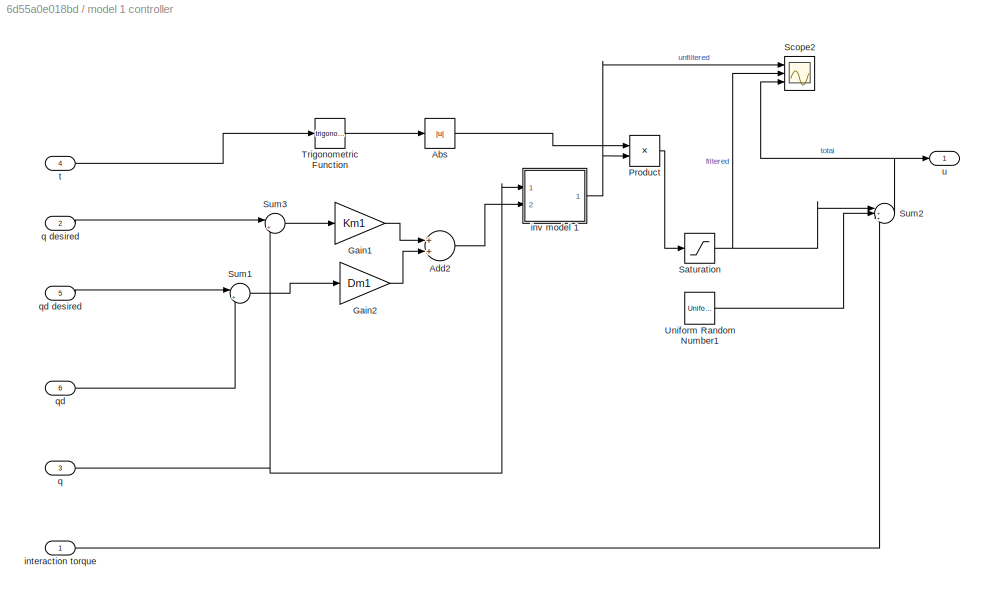
BLOCK [SubSystem] model 1 controller
  Ports = [6, 1]
  RequestExecContextInheritance = off
BLOCK [Abs] model 1 controller/Abs
  SaturateOnIntegerOverflow = off
BLOCK [Sum] model 1 controller/Add2
  InputSameDT = off
  OutDataTypeStr = Inherit: Inherit via internal rule
  Ports = [2, 1]
  SaturateOnIntegerOverflow = off
BLOCK [Gain] model 1 controller/Gain1
  Gain = Km1
  OutDataTypeStr = Inherit: Inherit via internal rule
  ParamDataTypeStr = Inherit: Inherit via internal rule
  SaturateOnIntegerOverflow = off
BLOCK [Gain] model 1 controller/Gain2
  Gain = Dm1
  OutDataTypeStr = Inherit: Inherit via internal rule
  ParamDataTypeStr = Inherit: Inherit via internal rule
  SaturateOnIntegerOverflow = off
BLOCK [Product] model 1 controller/Product
  InputSameDT = off
  OutDataTypeStr = Inherit: Inherit via internal rule
  Ports = [2, 1]
  RndMeth = Floor
  SaturateOnIntegerOverflow = off
BLOCK [Saturate] model 1 controller/Saturation
  InputPortMap = u0
  Ports = [1, 1]
BLOCK [Scope] model 1 controller/Scope2
  Floating = off
  NumInputPorts = 3
  Ports = [3]
  ScopeSpecificationString = Simulink.scopes.TimeScopeBlockCfg('CurrentConfiguration', extmgr.ConfigurationSet(extmgr.Configuration('Core','General UI',true),extmgr.Configuration('Core','Source UI',true),extmgr.Configuration('Sources','WiredSimulink',true,'DataLoggingVariableName','ScopeData3'),extmgr.Configuration('Visuals','Time Domain',true,'SerializedDisplays',{struct('MinYLimReal','-10.64562','MaxYLimReal','27.91743','YL...<+1418ch>
BLOCK [Sum] model 1 controller/Sum1
  IconShape = round
  InputSameDT = off
  Inputs = |+-
  OutDataTypeStr = Inherit: Inherit via internal rule
  Ports = [2, 1]
  SaturateOnIntegerOverflow = off
BLOCK [Sum] model 1 controller/Sum2
  IconShape = round
  InputSameDT = off
  Inputs = |+++
  OutDataTypeStr = Inherit: Inherit via internal rule
  Ports = [3, 1]
  SaturateOnIntegerOverflow = off
BLOCK [Sum] model 1 controller/Sum3
  IconShape = round
  InputSameDT = off
  Inputs = |+-
  OutDataTypeStr = Inherit: Inherit via internal rule
  Ports = [2, 1]
  SaturateOnIntegerOverflow = off
BLOCK [Trigonometry] model 1 controller/Trigonometric Function
  Ports = [1, 1]
BLOCK [UniformRandomNumber] model 1 controller/Uniform Random Number1
  Maximum = 4
  Minimum = -4
  SampleTime = 0.1
BLOCK [Inport] model 1 controller/interaction torque
  IconDisplay = Port number
BLOCK [SubSystem] model 1 controller/inv model 1
  Ports = [2, 1]
  RequestExecContextInheritance = off
BLOCK [Sum] model 1 controller/inv model 1/Add1
  InputSameDT = off
  OutDataTypeStr = Inherit: Inherit via internal rule
  Ports = [2, 1]
  SaturateOnIntegerOverflow = off
BLOCK [Constant] model 1 controller/inv model 1/Constant1
  Value = m1*g*l1
BLOCK [Gain] model 1 controller/inv model 1/Gain3
  Gain = m1*l1*l1
  OutDataTypeStr = Inherit: Inherit via internal rule
  ParamDataTypeStr = Inherit: Inherit via internal rule
  SaturateOnIntegerOverflow = off
BLOCK [Product] model 1 controller/inv model 1/Product1
  InputSameDT = off
  OutDataTypeStr = Inherit: Inherit via internal rule
  Ports = [2, 1]
  RndMeth = Floor
  SaturateOnIntegerOverflow = off
BLOCK [Trigonometry] model 1 controller/inv model 1/Trigonometric Function1
  Ports = [1, 1]
BLOCK [Inport] model 1 controller/inv model 1/q
  IconDisplay = Port number
BLOCK [Outport] model 1 controller/inv model 1/tau 
  IconDisplay = Port number
BLOCK [Inport] model 1 controller/inv model 1/u 
  IconDisplay = Port number
  Port = 2
BLOCK [Inport] model 1 controller/q
  IconDisplay = Port number
  Port = 3
BLOCK [Inport] model 1 controller/q desired
  IconDisplay = Port number
  Port = 2
BLOCK [Inport] model 1 controller/qd
  IconDisplay = Port number
  Port = 6
BLOCK [Inport] model 1 controller/qd desired
  IconDisplay = Port number
  Port = 5
BLOCK [Inport] model 1 controller/t
  IconDisplay = Port number
  Port = 4
BLOCK [Outport] model 1 controller/u
  IconDisplay = Port number
BLOCK [Sum] model 1/Add
  InputSameDT = off
  Inputs = +-
  OutDataTypeStr = Inherit: Inherit via internal rule
  Ports = [2, 1]
  SaturateOnIntegerOverflow = off
BLOCK [Constant] model 1/Constant
  Value = m1*g*l1
BLOCK [Gain] model 1/Gain
  Gain = 1/(m1*l1*l1)
  OutDataTypeStr = Inherit: Inherit via internal rule
  ParamDataTypeStr = Inherit: Inherit via internal rule
  SaturateOnIntegerOverflow = off
BLOCK [Integrator] model 1/Integrator
  Ports = [1, 1]
BLOCK [Integrator] model 1/Integrator1
  InitialCondition = -pi
  Ports = [1, 1]
BLOCK [Product] model 1/Product
  InputSameDT = off
  OutDataTypeStr = Inherit: Inherit via internal rule
  Ports = [2, 1]
  RndMeth = Floor
  SaturateOnIntegerOverflow = off
BLOCK [Trigonometry] model 1/Trigonometric Function
  Ports = [1, 1]
BLOCK [Outport] model 1/accel
  IconDisplay = Port number
BLOCK [Outport] model 1/pos
  IconDisplay = Port number
  Port = 3
BLOCK [Inport] model 1/u 
  IconDisplay = Port number
BLOCK [Outport] model 1/vel
  IconDisplay = Port number
  Port = 2
BLOCK [SubSystem] model 2
  Ports = [1, 3]
  RequestExecContextInheritance = off
BLOCK [Sum] model 2/Add
  InputSameDT = off
  Inputs = +-
  OutDataTypeStr = Inherit: Inherit via internal rule
  Ports = [2, 1]
  SaturateOnIntegerOverflow = off
BLOCK [Constant] model 2/Constant
  Value = m2*g*l2
BLOCK [Gain] model 2/Gain
  Gain = 1/(m2*l2*l2)
  OutDataTypeStr = Inherit: Inherit via internal rule
  ParamDataTypeStr = Inherit: Inherit via internal rule
  SaturateOnIntegerOverflow = off
BLOCK [Integrator] model 2/Integrator
  Ports = [1, 1]
BLOCK [Integrator] model 2/Integrator1
  InitialCondition = -pi
  Ports = [1, 1]
BLOCK [Product] model 2/Product
  InputSameDT = off
  OutDataTypeStr = Inherit: Inherit via internal rule
  Ports = [2, 1]
  RndMeth = Floor
  SaturateOnIntegerOverflow = off
BLOCK [Trigonometry] model 2/Trigonometric Function
  Ports = [1, 1]
BLOCK [Outport] model 2/accel
  IconDisplay = Port number
BLOCK [Outport] model 2/pos
  IconDisplay = Port number
  Port = 3
BLOCK [Inport] model 2/u 
  IconDisplay = Port number
BLOCK [Outport] model 2/vel
  IconDisplay = Port number
  Port = 2
BLOCK [SubSystem] model 3
  Commented = on
  Ports = [1, 3]
  RequestExecContextInheritance = off
BLOCK [Sum] model 3/Add
  InputSameDT = off
  Inputs = +-
  OutDataTypeStr = Inherit: Inherit via internal rule
  Ports = [2, 1]
  SaturateOnIntegerOverflow = off
BLOCK [Constant] model 3/Constant
  Value = m1*g*l1
BLOCK [Gain] model 3/Gain
  Gain = 1/(m1*l1*l1)
  OutDataTypeStr = Inherit: Inherit via internal rule
  ParamDataTypeStr = Inherit: Inherit via internal rule
  SaturateOnIntegerOverflow = off
BLOCK [Integrator] model 3/Integrator
  Ports = [1, 1]
BLOCK [Integrator] model 3/Integrator1
  InitialCondition = -pi
  Ports = [1, 1]
BLOCK [Product] model 3/Product
  InputSameDT = off
  OutDataTypeStr = Inherit: Inherit via internal rule
  Ports = [2, 1]
  RndMeth = Floor
  SaturateOnIntegerOverflow = off
BLOCK [Trigonometry] model 3/Trigonometric Function
  Ports = [1, 1]
BLOCK [Outport] model 3/accel
  IconDisplay = Port number
BLOCK [Outport] model 3/pos
  IconDisplay = Port number
  Port = 3
BLOCK [Inport] model 3/u 
  IconDisplay = Port number
BLOCK [Outport] model 3/vel
  IconDisplay = Port number
  Port = 2
BLOCK [SubSystem] model 4
  Commented = on
  Ports = [1, 3]
  RequestExecContextInheritance = off
BLOCK [Sum] model 4/Add
  InputSameDT = off
  Inputs = +-
  OutDataTypeStr = Inherit: Inherit via internal rule
  Ports = [2, 1]
  SaturateOnIntegerOverflow = off
BLOCK [Constant] model 4/Constant
  Value = m2*g*l2
BLOCK [Gain] model 4/Gain
  Gain = 1/(m2*l2*l2)
  OutDataTypeStr = Inherit: Inherit via internal rule
  ParamDataTypeStr = Inherit: Inherit via internal rule
  SaturateOnIntegerOverflow = off
BLOCK [Integrator] model 4/Integrator
  Ports = [1, 1]
BLOCK [Integrator] model 4/Integrator1
  InitialCondition = -pi
  Ports = [1, 1]
BLOCK [Product] model 4/Product
  InputSameDT = off
  OutDataTypeStr = Inherit: Inherit via internal rule
  Ports = [2, 1]
  RndMeth = Floor
  SaturateOnIntegerOverflow = off
BLOCK [Trigonometry] model 4/Trigonometric Function
  Ports = [1, 1]
BLOCK [Outport] model 4/accel
  IconDisplay = Port number
BLOCK [Outport] model 4/pos
  IconDisplay = Port number
  Port = 3
BLOCK [Inport] model 4/u 
  IconDisplay = Port number
BLOCK [Outport] model 4/vel
  IconDisplay = Port number
  Port = 2
BLOCK [SubSystem] model 5
  Commented = on
  Ports = [1, 3]
  RequestExecContextInheritance = off
BLOCK [Sum] model 5/Add
  InputSameDT = off
  Inputs = +-
  OutDataTypeStr = Inherit: Inherit via internal rule
  Ports = [2, 1]
  SaturateOnIntegerOverflow = off
BLOCK [Constant] model 5/Constant
  Value = m1*g*l1
BLOCK [Gain] model 5/Gain
  Gain = 1/(m1*l1*l1)
  OutDataTypeStr = Inherit: Inherit via internal rule
  ParamDataTypeStr = Inherit: Inherit via internal rule
  SaturateOnIntegerOverflow = off
BLOCK [Integrator] model 5/Integrator
  Ports = [1, 1]
BLOCK [Integrator] model 5/Integrator1
  InitialCondition = -pi
  Ports = [1, 1]
BLOCK [Product] model 5/Product
  InputSameDT = off
  OutDataTypeStr = Inherit: Inherit via internal rule
  Ports = [2, 1]
  RndMeth = Floor
  SaturateOnIntegerOverflow = off
BLOCK [Trigonometry] model 5/Trigonometric Function
  Ports = [1, 1]
BLOCK [Outport] model 5/accel
  IconDisplay = Port number
BLOCK [Outport] model 5/pos
  IconDisplay = Port number
  Port = 3
BLOCK [Inport] model 5/u 
  IconDisplay = Port number
BLOCK [Outport] model 5/vel
  IconDisplay = Port number
  Port = 2
BLOCK [SubSystem] model 6
  Commented = on
  Ports = [1, 3]
  RequestExecContextInheritance = off
BLOCK [Sum] model 6/Add
  InputSameDT = off
  Inputs = +-
  OutDataTypeStr = Inherit: Inherit via internal rule
  Ports = [2, 1]
  SaturateOnIntegerOverflow = off
BLOCK [Constant] model 6/Constant
  Value = m2*g*l2
BLOCK [Gain] model 6/Gain
  Gain = 1/(m2*l2*l2)
  OutDataTypeStr = Inherit: Inherit via internal rule
  ParamDataTypeStr = Inherit: Inherit via internal rule
  SaturateOnIntegerOverflow = off
BLOCK [Integrator] model 6/Integrator
  Ports = [1, 1]
BLOCK [Integrator] model 6/Integrator1
  InitialCondition = -pi
  Ports = [1, 1]
BLOCK [Product] model 6/Product
  InputSameDT = off
  OutDataTypeStr = Inherit: Inherit via internal rule
  Ports = [2, 1]
  RndMeth = Floor
  SaturateOnIntegerOverflow = off
BLOCK [Trigonometry] model 6/Trigonometric Function
  Ports = [1, 1]
BLOCK [Outport] model 6/accel
  IconDisplay = Port number
BLOCK [Outport] model 6/pos
  IconDisplay = Port number
  Port = 3
BLOCK [Inport] model 6/u 
  IconDisplay = Port number
BLOCK [Outport] model 6/vel
  IconDisplay = Port number
  Port = 2
BLOCK [UniformRandomNumber] noise
  Maximum = 3
  Minimum = -3
  SampleTime = 0.1
BLOCK [SubSystem] sliding mode controller
  Ports = [4, 1]
  RequestExecContextInheritance = off
BLOCK [Sum] sliding mode controller/Add
  InputSameDT = off
  OutDataTypeStr = Inherit: Inherit via internal rule
  Ports = [2, 1]
  SaturateOnIntegerOverflow = off
BLOCK [Sum] sliding mode controller/Add1
  InputSameDT = off
  Inputs = +--
  OutDataTypeStr = Inherit: Inherit via internal rule
  Ports = [3, 1]
  SaturateOnIntegerOverflow = off
BLOCK [Gain] sliding mode controller/Gain12
  Gain = lambda2
  OutDataTypeStr = Inherit: Inherit via internal rule
  ParamDataTypeStr = Inherit: Inherit via internal rule
  SaturateOnIntegerOverflow = off
BLOCK [Gain] sliding mode controller/Gain18
  Gain = 1/(.10)
  OutDataTypeStr = Inherit: Inherit via internal rule
  ParamDataTypeStr = Inherit: Inherit via internal rule
  SaturateOnIntegerOverflow = off
BLOCK [Gain] sliding mode controller/Gain3
  Gain = lambda2
  OutDataTypeStr = Inherit: Inherit via internal rule
  ParamDataTypeStr = Inherit: Inherit via internal rule
  SaturateOnIntegerOverflow = off
BLOCK [Gain] sliding mode controller/Gain4
  Gain = rho2
  OutDataTypeStr = Inherit: Inherit via internal rule
  ParamDataTypeStr = Inherit: Inherit via internal rule
  SaturateOnIntegerOverflow = off
BLOCK [Outport] sliding mode controller/SMC
  IconDisplay = Port number
BLOCK [Scope] sliding mode controller/Scope19
  Floating = off
  NumInputPorts = 2
  Ports = [2]
  ScopeSpecificationString = Simulink.scopes.TimeScopeBlockCfg('CurrentConfiguration', extmgr.ConfigurationSet(extmgr.Configuration('Core','General UI',true),extmgr.Configuration('Core','Source UI',true),extmgr.Configuration('Sources','WiredSimulink',true,'DataLoggingVariableName','ScopeData1'),extmgr.Configuration('Visuals','Time Domain',true,'SerializedDisplays',{struct('MinYLimReal','-1.25','MaxYLimReal','1.25','YLabelReal...<+1395ch>
BLOCK [Scope] sliding mode controller/Scope22
  Floating = off
  NumInputPorts = 2
  Ports = [2]
  ScopeSpecificationString = Simulink.scopes.TimeScopeBlockCfg('CurrentConfiguration', extmgr.ConfigurationSet(extmgr.Configuration('Core','General UI',true),extmgr.Configuration('Core','Source UI',true),extmgr.Configuration('Sources','WiredSimulink',true,'DataLoggingVariableName','ScopeData2'),extmgr.Configuration('Visuals','Time Domain',true,'SerializedDisplays',{struct('MinYLimReal','-3.90929','MaxYLimReal','3.7677','YLabe...<+1474ch>
BLOCK [Scope] sliding mode controller/Scope6
  Floating = off
  NumInputPorts = 1
  Ports = [1]
  ScopeSpecificationString = Simulink.scopes.TimeScopeBlockCfg('CurrentConfiguration', extmgr.ConfigurationSet(extmgr.Configuration('Core','General UI',true),extmgr.Configuration('Core','Source UI',true),extmgr.Configuration('Sources','WiredSimulink',true,'DataLoggingVariableName','ScopeData6'),extmgr.Configuration('Visuals','Time Domain',true,'SerializedDisplays',{struct('MinYLimReal','-3.54056','MaxYLimReal','0.44913','YLab...<+1405ch>
BLOCK [Signum] sliding mode controller/Sign
BLOCK [Trigonometry] sliding mode controller/Tanh
  Operator = tanh
  Ports = [1, 1]
BLOCK [Reference] sliding mode controller/XY Graph  REF=simulink/Sinks/XY Graph
  Ports = [2]
  SourceBlock = simulink/Sinks/XY Graph
  SourceProductBaseCode = SL
  SourceProductName = Simulink
  SourceType = XY scope.
BLOCK [SubSystem] sliding mode controller/inv model 2
  Ports = [2, 1]
  RequestExecContextInheritance = off
BLOCK [Sum] sliding mode controller/inv model 2/Add1
  InputSameDT = off
  OutDataTypeStr = Inherit: Inherit via internal rule
  Ports = [2, 1]
  SaturateOnIntegerOverflow = off
BLOCK [Constant] sliding mode controller/inv model 2/Constant1
  Value = m2*g*l2
BLOCK [Gain] sliding mode controller/inv model 2/Gain3
  Gain = m2*l2*l2
  OutDataTypeStr = Inherit: Inherit via internal rule
  ParamDataTypeStr = Inherit: Inherit via internal rule
  SaturateOnIntegerOverflow = off
BLOCK [Product] sliding mode controller/inv model 2/Product1
  InputSameDT = off
  OutDataTypeStr = Inherit: Inherit via internal rule
  Ports = [2, 1]
  RndMeth = Floor
  SaturateOnIntegerOverflow = off
BLOCK [Trigonometry] sliding mode controller/inv model 2/Trigonometric Function1
  Ports = [1, 1]
BLOCK [Inport] sliding mode controller/inv model 2/q
  IconDisplay = Port number
BLOCK [Outport] sliding mode controller/inv model 2/tau 
  IconDisplay = Port number
BLOCK [Inport] sliding mode controller/inv model 2/u 
  IconDisplay = Port number
  Port = 2
BLOCK [Inport] sliding mode controller/q
  IconDisplay = Port number
  Port = 4
BLOCK [Inport] sliding mode controller/qdd desired
  IconDisplay = Port number
BLOCK [Inport] sliding mode controller/x
  IconDisplay = Port number
  Port = 2
BLOCK [Inport] sliding mode controller/xd
  IconDisplay = Port number
  Port = 3
BLOCK [SubSystem] sping-damper1
  Commented = on
  Ports = [4, 1]
  RequestExecContextInheritance = off
BLOCK [Outport] sping-damper1/F
  IconDisplay = Port number
BLOCK [Gain] sping-damper1/Gain3
  Gain = spring
  OutDataTypeStr = Inherit: Inherit via internal rule
  ParamDataTypeStr = Inherit: Inherit via internal rule
  SaturateOnIntegerOverflow = off
BLOCK [Gain] sping-damper1/Gain4
  Gain = dampener
  OutDataTypeStr = Inherit: Inherit via internal rule
  ParamDataTypeStr = Inherit: Inherit via internal rule
  SaturateOnIntegerOverflow = off
BLOCK [Sum] sping-damper1/Subtract
  InputSameDT = off
  Inputs = -+
  OutDataTypeStr = Inherit: Inherit via internal rule
  Ports = [2, 1]
  SaturateOnIntegerOverflow = off
BLOCK [Sum] sping-damper1/Subtract1
  InputSameDT = off
  Inputs = -+
  OutDataTypeStr = Inherit: Inherit via internal rule
  Ports = [2, 1]
  SaturateOnIntegerOverflow = off
BLOCK [Sum] sping-damper1/Subtract2
  InputSameDT = off
  OutDataTypeStr = Inherit: Inherit via internal rule
  Ports = [2, 1]
  SaturateOnIntegerOverflow = off
BLOCK [Inport] sping-damper1/dtheta 1
  IconDisplay = Port number
  Port = 2
BLOCK [Inport] sping-damper1/dtheta 2
  IconDisplay = Port number
  Port = 4
BLOCK [SubSystem] sping-damper1/forward kin
  Ports = [2, 2]
  RequestExecContextInheritance = off
BLOCK [Gain] sping-damper1/forward kin/Gain1
  Gain = -l1
  OutDataTypeStr = Inherit: Inherit via internal rule
  ParamDataTypeStr = Inherit: Inherit via internal rule
  SaturateOnIntegerOverflow = off
BLOCK [Gain] sping-damper1/forward kin/Gain2
  Gain = l1
  OutDataTypeStr = Inherit: Inherit via internal rule
  ParamDataTypeStr = Inherit: Inherit via internal rule
  SaturateOnIntegerOverflow = off
BLOCK [Gain] sping-damper1/forward kin/Gain3
  Gain = l1
  OutDataTypeStr = Inherit: Inherit via internal rule
  ParamDataTypeStr = Inherit: Inherit via internal rule
  SaturateOnIntegerOverflow = off
BLOCK [Gain] sping-damper1/forward kin/Gain4
  Gain = l1
  OutDataTypeStr = Inherit: Inherit via internal rule
  ParamDataTypeStr = Inherit: Inherit via internal rule
  SaturateOnIntegerOverflow = off
BLOCK [Mux] sping-damper1/forward kin/Mux
  DisplayOption = bar
  Inputs = 2
  Ports = [2, 1]
BLOCK [Mux] sping-damper1/forward kin/Mux1
  DisplayOption = bar
  Inputs = 2
  Ports = [2, 1]
BLOCK [Product] sping-damper1/forward kin/Product
  InputSameDT = off
  OutDataTypeStr = Inherit: Inherit via internal rule
  Ports = [2, 1]
  RndMeth = Floor
  SaturateOnIntegerOverflow = off
BLOCK [Product] sping-damper1/forward kin/Product1
  InputSameDT = off
  OutDataTypeStr = Inherit: Inherit via internal rule
  Ports = [2, 1]
  RndMeth = Floor
  SaturateOnIntegerOverflow = off
BLOCK [Trigonometry] sping-damper1/forward kin/Trigonometric Function
  Operator = cos
  Ports = [1, 1]
BLOCK [Trigonometry] sping-damper1/forward kin/Trigonometric Function1
  Ports = [1, 1]
BLOCK [Trigonometry] sping-damper1/forward kin/Trigonometric Function2
  Ports = [1, 1]
BLOCK [Trigonometry] sping-damper1/forward kin/Trigonometric Function3
  Operator = cos
  Ports = [1, 1]
BLOCK [Inport] sping-damper1/forward kin/dtheta 
  IconDisplay = Port number
  Port = 2
BLOCK [Outport] sping-damper1/forward kin/pos
  IconDisplay = Port number
BLOCK [Inport] sping-damper1/forward kin/theta 
  IconDisplay = Port number
BLOCK [Outport] sping-damper1/forward kin/vel
  IconDisplay = Port number
  Port = 2
BLOCK [SubSystem] sping-damper1/forward kin1
  Ports = [2, 2]
  RequestExecContextInheritance = off
BLOCK [Gain] sping-damper1/forward kin1/Gain1
  Gain = -l1
  OutDataTypeStr = Inherit: Inherit via internal rule
  ParamDataTypeStr = Inherit: Inherit via internal rule
  SaturateOnIntegerOverflow = off
BLOCK [Gain] sping-damper1/forward kin1/Gain2
  Gain = l1
  OutDataTypeStr = Inherit: Inherit via internal rule
  ParamDataTypeStr = Inherit: Inherit via internal rule
  SaturateOnIntegerOverflow = off
BLOCK [Gain] sping-damper1/forward kin1/Gain3
  Gain = l1
  OutDataTypeStr = Inherit: Inherit via internal rule
  ParamDataTypeStr = Inherit: Inherit via internal rule
  SaturateOnIntegerOverflow = off
BLOCK [Gain] sping-damper1/forward kin1/Gain4
  Gain = l1
  OutDataTypeStr = Inherit: Inherit via internal rule
  ParamDataTypeStr = Inherit: Inherit via internal rule
  SaturateOnIntegerOverflow = off
BLOCK [Mux] sping-damper1/forward kin1/Mux
  DisplayOption = bar
  Inputs = 2
  Ports = [2, 1]
BLOCK [Mux] sping-damper1/forward kin1/Mux1
  DisplayOption = bar
  Inputs = 2
  Ports = [2, 1]
BLOCK [Product] sping-damper1/forward kin1/Product
  InputSameDT = off
  OutDataTypeStr = Inherit: Inherit via internal rule
  Ports = [2, 1]
  RndMeth = Floor
  SaturateOnIntegerOverflow = off
BLOCK [Product] sping-damper1/forward kin1/Product1
  InputSameDT = off
  OutDataTypeStr = Inherit: Inherit via internal rule
  Ports = [2, 1]
  RndMeth = Floor
  SaturateOnIntegerOverflow = off
BLOCK [Trigonometry] sping-damper1/forward kin1/Trigonometric Function
  Operator = cos
  Ports = [1, 1]
BLOCK [Trigonometry] sping-damper1/forward kin1/Trigonometric Function1
  Ports = [1, 1]
BLOCK [Trigonometry] sping-damper1/forward kin1/Trigonometric Function2
  Ports = [1, 1]
BLOCK [Trigonometry] sping-damper1/forward kin1/Trigonometric Function3
  Operator = cos
  Ports = [1, 1]
BLOCK [Inport] sping-damper1/forward kin1/dtheta 
  IconDisplay = Port number
  Port = 2
BLOCK [Outport] sping-damper1/forward kin1/pos
  IconDisplay = Port number
BLOCK [Inport] sping-damper1/forward kin1/theta 
  IconDisplay = Port number
BLOCK [Outport] sping-damper1/forward kin1/vel
  IconDisplay = Port number
  Port = 2
BLOCK [Inport] sping-damper1/theta 1
  IconDisplay = Port number
BLOCK [Inport] sping-damper1/theta 2
  IconDisplay = Port number
  Port = 3
BLOCK [SubSystem] sping-damper2
  Commented = on
  Ports = [4, 1]
  RequestExecContextInheritance = off
BLOCK [Outport] sping-damper2/F
  IconDisplay = Port number
BLOCK [Gain] sping-damper2/Gain3
  Gain = spring
  OutDataTypeStr = Inherit: Inherit via internal rule
  ParamDataTypeStr = Inherit: Inherit via internal rule
  SaturateOnIntegerOverflow = off
BLOCK [Gain] sping-damper2/Gain4
  Gain = dampener
  OutDataTypeStr = Inherit: Inherit via internal rule
  ParamDataTypeStr = Inherit: Inherit via internal rule
  SaturateOnIntegerOverflow = off
BLOCK [Sum] sping-damper2/Subtract
  InputSameDT = off
  Inputs = -+
  OutDataTypeStr = Inherit: Inherit via internal rule
  Ports = [2, 1]
  SaturateOnIntegerOverflow = off
BLOCK [Sum] sping-damper2/Subtract1
  InputSameDT = off
  Inputs = -+
  OutDataTypeStr = Inherit: Inherit via internal rule
  Ports = [2, 1]
  SaturateOnIntegerOverflow = off
BLOCK [Sum] sping-damper2/Subtract2
  InputSameDT = off
  OutDataTypeStr = Inherit: Inherit via internal rule
  Ports = [2, 1]
  SaturateOnIntegerOverflow = off
BLOCK [Inport] sping-damper2/dtheta 1
  IconDisplay = Port number
  Port = 2
BLOCK [Inport] sping-damper2/dtheta 2
  IconDisplay = Port number
  Port = 4
BLOCK [SubSystem] sping-damper2/forward kin
  Ports = [2, 2]
  RequestExecContextInheritance = off
BLOCK [Gain] sping-damper2/forward kin/Gain1
  Gain = -l1
  OutDataTypeStr = Inherit: Inherit via internal rule
  ParamDataTypeStr = Inherit: Inherit via internal rule
  SaturateOnIntegerOverflow = off
BLOCK [Gain] sping-damper2/forward kin/Gain2
  Gain = l1
  OutDataTypeStr = Inherit: Inherit via internal rule
  ParamDataTypeStr = Inherit: Inherit via internal rule
  SaturateOnIntegerOverflow = off
BLOCK [Gain] sping-damper2/forward kin/Gain3
  Gain = l1
  OutDataTypeStr = Inherit: Inherit via internal rule
  ParamDataTypeStr = Inherit: Inherit via internal rule
  SaturateOnIntegerOverflow = off
BLOCK [Gain] sping-damper2/forward kin/Gain4
  Gain = l1
  OutDataTypeStr = Inherit: Inherit via internal rule
  ParamDataTypeStr = Inherit: Inherit via internal rule
  SaturateOnIntegerOverflow = off
BLOCK [Mux] sping-damper2/forward kin/Mux
  DisplayOption = bar
  Inputs = 2
  Ports = [2, 1]
BLOCK [Mux] sping-damper2/forward kin/Mux1
  DisplayOption = bar
  Inputs = 2
  Ports = [2, 1]
BLOCK [Product] sping-damper2/forward kin/Product
  InputSameDT = off
  OutDataTypeStr = Inherit: Inherit via internal rule
  Ports = [2, 1]
  RndMeth = Floor
  SaturateOnIntegerOverflow = off
BLOCK [Product] sping-damper2/forward kin/Product1
  InputSameDT = off
  OutDataTypeStr = Inherit: Inherit via internal rule
  Ports = [2, 1]
  RndMeth = Floor
  SaturateOnIntegerOverflow = off
BLOCK [Trigonometry] sping-damper2/forward kin/Trigonometric Function
  Operator = cos
  Ports = [1, 1]
BLOCK [Trigonometry] sping-damper2/forward kin/Trigonometric Function1
  Ports = [1, 1]
BLOCK [Trigonometry] sping-damper2/forward kin/Trigonometric Function2
  Ports = [1, 1]
BLOCK [Trigonometry] sping-damper2/forward kin/Trigonometric Function3
  Operator = cos
  Ports = [1, 1]
BLOCK [Inport] sping-damper2/forward kin/dtheta 
  IconDisplay = Port number
  Port = 2
BLOCK [Outport] sping-damper2/forward kin/pos
  IconDisplay = Port number
BLOCK [Inport] sping-damper2/forward kin/theta 
  IconDisplay = Port number
BLOCK [Outport] sping-damper2/forward kin/vel
  IconDisplay = Port number
  Port = 2
BLOCK [SubSystem] sping-damper2/forward kin1
  Ports = [2, 2]
  RequestExecContextInheritance = off
BLOCK [Gain] sping-damper2/forward kin1/Gain1
  Gain = -l1
  OutDataTypeStr = Inherit: Inherit via internal rule
  ParamDataTypeStr = Inherit: Inherit via internal rule
  SaturateOnIntegerOverflow = off
BLOCK [Gain] sping-damper2/forward kin1/Gain2
  Gain = l1
  OutDataTypeStr = Inherit: Inherit via internal rule
  ParamDataTypeStr = Inherit: Inherit via internal rule
  SaturateOnIntegerOverflow = off
BLOCK [Gain] sping-damper2/forward kin1/Gain3
  Gain = l1
  OutDataTypeStr = Inherit: Inherit via internal rule
  ParamDataTypeStr = Inherit: Inherit via internal rule
  SaturateOnIntegerOverflow = off
BLOCK [Gain] sping-damper2/forward kin1/Gain4
  Gain = l1
  OutDataTypeStr = Inherit: Inherit via internal rule
  ParamDataTypeStr = Inherit: Inherit via internal rule
  SaturateOnIntegerOverflow = off
BLOCK [Mux] sping-damper2/forward kin1/Mux
  DisplayOption = bar
  Inputs = 2
  Ports = [2, 1]
BLOCK [Mux] sping-damper2/forward kin1/Mux1
  DisplayOption = bar
  Inputs = 2
  Ports = [2, 1]
BLOCK [Product] sping-damper2/forward kin1/Product
  InputSameDT = off
  OutDataTypeStr = Inherit: Inherit via internal rule
  Ports = [2, 1]
  RndMeth = Floor
  SaturateOnIntegerOverflow = off
BLOCK [Product] sping-damper2/forward kin1/Product1
  InputSameDT = off
  OutDataTypeStr = Inherit: Inherit via internal rule
  Ports = [2, 1]
  RndMeth = Floor
  SaturateOnIntegerOverflow = off
BLOCK [Trigonometry] sping-damper2/forward kin1/Trigonometric Function
  Operator = cos
  Ports = [1, 1]
BLOCK [Trigonometry] sping-damper2/forward kin1/Trigonometric Function1
  Ports = [1, 1]
BLOCK [Trigonometry] sping-damper2/forward kin1/Trigonometric Function2
  Ports = [1, 1]
BLOCK [Trigonometry] sping-damper2/forward kin1/Trigonometric Function3
  Operator = cos
  Ports = [1, 1]
BLOCK [Inport] sping-damper2/forward kin1/dtheta 
  IconDisplay = Port number
  Port = 2
BLOCK [Outport] sping-damper2/forward kin1/pos
  IconDisplay = Port number
BLOCK [Inport] sping-damper2/forward kin1/theta 
  IconDisplay = Port number
BLOCK [Outport] sping-damper2/forward kin1/vel
  IconDisplay = Port number
  Port = 2
BLOCK [Inport] sping-damper2/theta 1
  IconDisplay = Port number
BLOCK [Inport] sping-damper2/theta 2
  IconDisplay = Port number
  Port = 3
BLOCK [SubSystem] standered interation
  Ports = [2, 1]
  RequestExecContextInheritance = off
BLOCK [Sum] standered interation/Add1
  InputSameDT = off
  OutDataTypeStr = Inherit: Inherit via internal rule
  Ports = [2, 1]
  SaturateOnIntegerOverflow = off
BLOCK [Constant] standered interation/Constant1
  Value = m1*g*l1
BLOCK [Gain] standered interation/Gain3
  Gain = m1*l1*l1
  OutDataTypeStr = Inherit: Inherit via internal rule
  ParamDataTypeStr = Inherit: Inherit via internal rule
  SaturateOnIntegerOverflow = off
BLOCK [Product] standered interation/Product1
  InputSameDT = off
  OutDataTypeStr = Inherit: Inherit via internal rule
  Ports = [2, 1]
  RndMeth = Floor
  SaturateOnIntegerOverflow = off
BLOCK [Trigonometry] standered interation/Trigonometric Function1
  Ports = [1, 1]
BLOCK [Inport] standered interation/q
  IconDisplay = Port number
BLOCK [Outport] standered interation/tau 
  IconDisplay = Port number
BLOCK [Inport] standered interation/u 
  IconDisplay = Port number
  Port = 2
LINE  interaction sping-damper/Gain3:1 ->  interaction sping-damper/Subtract2:1
LINE  interaction sping-damper/Gain4:1 ->  interaction sping-damper/Subtract2:2
LINE  interaction sping-damper/Subtract1:1 ->  interaction sping-damper/Gain4:1
LINE  interaction sping-damper/Subtract2:1 ->  interaction sping-damper/F:1
LINE  interaction sping-damper/Subtract:1 ->  interaction sping-damper/Gain3:1
LINE  interaction sping-damper/dtheta 1:1 ->  interaction sping-damper/forward kin:2
LINE  interaction sping-damper/dtheta 2:1 ->  interaction sping-damper/forward kin1:2
LINE  interaction sping-damper/forward kin/Gain1:1 ->  interaction sping-damper/forward kin/Product1:1
LINE  interaction sping-damper/forward kin/Gain2:1 ->  interaction sping-damper/forward kin/Product:2
LINE  interaction sping-damper/forward kin/Gain3:1 ->  interaction sping-damper/forward kin/Mux:1
LINE  interaction sping-damper/forward kin/Gain4:1 ->  interaction sping-damper/forward kin/Mux:2
LINE  interaction sping-damper/forward kin/Mux1:1 ->  interaction sping-damper/forward kin/vel:1
LINE  interaction sping-damper/forward kin/Mux:1 ->  interaction sping-damper/forward kin/pos:1
LINE  interaction sping-damper/forward kin/Product1:1 ->  interaction sping-damper/forward kin/Mux1:1
LINE  interaction sping-damper/forward kin/Product:1 ->  interaction sping-damper/forward kin/Mux1:2
LINE  interaction sping-damper/forward kin/Trigonometric Function1:1 ->  interaction sping-damper/forward kin/Gain4:1
LINE  interaction sping-damper/forward kin/Trigonometric Function2:1 ->  interaction sping-damper/forward kin/Gain1:1
LINE  interaction sping-damper/forward kin/Trigonometric Function3:1 ->  interaction sping-damper/forward kin/Gain2:1
LINE  interaction sping-damper/forward kin/Trigonometric Function:1 ->  interaction sping-damper/forward kin/Gain3:1
NET  interaction sping-damper/forward kin/dtheta :1 ->  interaction sping-damper/forward kin/Product1:2,  interaction sping-damper/forward kin/Product:1
NET  interaction sping-damper/forward kin/theta :1 ->  interaction sping-damper/forward kin/Trigonometric Function1:1,  interaction sping-damper/forward kin/Trigonometric Function2:1,  interaction sping-damper/forward kin/Trigonometric Function3:1,  interaction sping-damper/forward kin/Trigonometric Function:1
LINE  interaction sping-damper/forward kin1/Gain1:1 ->  interaction sping-damper/forward kin1/Product1:1
LINE  interaction sping-damper/forward kin1/Gain2:1 ->  interaction sping-damper/forward kin1/Product:2
LINE  interaction sping-damper/forward kin1/Gain3:1 ->  interaction sping-damper/forward kin1/Mux:1
LINE  interaction sping-damper/forward kin1/Gain4:1 ->  interaction sping-damper/forward kin1/Mux:2
LINE  interaction sping-damper/forward kin1/Mux1:1 ->  interaction sping-damper/forward kin1/vel:1
LINE  interaction sping-damper/forward kin1/Mux:1 ->  interaction sping-damper/forward kin1/pos:1
LINE  interaction sping-damper/forward kin1/Product1:1 ->  interaction sping-damper/forward kin1/Mux1:1
LINE  interaction sping-damper/forward kin1/Product:1 ->  interaction sping-damper/forward kin1/Mux1:2
LINE  interaction sping-damper/forward kin1/Trigonometric Function1:1 ->  interaction sping-damper/forward kin1/Gain4:1
LINE  interaction sping-damper/forward kin1/Trigonometric Function2:1 ->  interaction sping-damper/forward kin1/Gain1:1
LINE  interaction sping-damper/forward kin1/Trigonometric Function3:1 ->  interaction sping-damper/forward kin1/Gain2:1
LINE  interaction sping-damper/forward kin1/Trigonometric Function:1 ->  interaction sping-damper/forward kin1/Gain3:1
NET  interaction sping-damper/forward kin1/dtheta :1 ->  interaction sping-damper/forward kin1/Product1:2,  interaction sping-damper/forward kin1/Product:1
NET  interaction sping-damper/forward kin1/theta :1 ->  interaction sping-damper/forward kin1/Trigonometric Function1:1,  interaction sping-damper/forward kin1/Trigonometric Function2:1,  interaction sping-damper/forward kin1/Trigonometric Function3:1,  interaction sping-damper/forward kin1/Trigonometric Function:1
LINE  interaction sping-damper/forward kin1:1 ->  interaction sping-damper/Subtract:2
LINE  interaction sping-damper/forward kin1:2 ->  interaction sping-damper/Subtract1:2
LINE  interaction sping-damper/forward kin:1 ->  interaction sping-damper/Subtract:1
LINE  interaction sping-damper/forward kin:2 ->  interaction sping-damper/Subtract1:1
LINE  interaction sping-damper/theta 1:1 ->  interaction sping-damper/forward kin:1
LINE  interaction sping-damper/theta 2:1 ->  interaction sping-damper/forward kin1:1
NET  interaction sping-damper:1 -> Scope:1, forward kin model 1:2, forward kin model 2:2
NET Add4:1 -> Scope14:1, Sign1:1
LINE Add5:1 -> inv model 6:2
LINE Add6:1 -> inv model 5:2
NET Add7:1 -> Scope18:1, Sign2:1
LINE Add8:1 -> inv model 8:2
LINE Add9:1 -> inv model 7:2
NET Clock1:1 -> Polynomial Trajectory1:1, Trigonometric Function1:1
NET Clock2:1 -> Polynomial Trajectory2:1, Trigonometric Function2:1
NET Clock:1 -> Polynomial Trajectory:1, model 1 controller:4
LINE Gain10:1 -> Add4:1
LINE Gain11:1 -> Add5:3
LINE Gain13:1 -> Add7:1
LINE Gain14:1 -> Add8:3
LINE Gain15:1 -> Add8:2
LINE Gain16:1 -> Add9:1
LINE Gain17:1 -> Add9:2
LINE Gain5:1 -> Add5:2
LINE Gain8:1 -> Add6:1
LINE Gain9:1 -> Add6:2
NET Polynomial Trajectory1:1 -> Scope9:1, Sum12:1, Sum15:1
NET Polynomial Trajectory1:2 -> Sum13:1, Sum5:1
LINE Polynomial Trajectory1:3 -> Add5:1
NET Polynomial Trajectory2:1 -> Scope17:2, Scope21:1, Sum16:1, Sum7:1, addmittacne1:1
NET Polynomial Trajectory2:2 -> Sum14:1, Sum17:1, addmittacne1:2, addmittacne1:4
LINE Polynomial Trajectory2:3 -> Add8:1
NET Polynomial Trajectory:1 -> Scope1:1, addmittance:1, model 1 controller:2
NET Polynomial Trajectory:2 -> addmittance:2, model 1 controller:5
LINE Polynomial Trajectory:3 -> sliding mode controller:1
NET Saturation1:1 -> Scope10:1, Sum8:2
NET Saturation2:1 -> Scope13:1, Sum19:2
LINE Sign1:1 -> Gain11:1
LINE Sign2:1 -> Gain14:1
LINE Sum12:1 -> Gain8:1
NET Sum13:1 -> Add4:2, Gain5:1
NET Sum14:1 -> Add7:2, Gain15:1
LINE Sum15:1 -> Gain10:1
LINE Sum16:1 -> Gain13:1
LINE Sum17:1 -> Gain17:1
LINE Sum18:1 -> model 6:1
NET Sum19:1 -> Scope13:2, model 5:1
LINE Sum20:1 -> addmittacne1:5
LINE Sum4:1 -> addmittance:5
LINE Sum5:1 -> Gain9:1
LINE Sum6:1 -> model 4:1
LINE Sum7:1 -> Gain16:1
NET Sum8:1 -> Scope10:2, model 3:1
NET Trigonometric Function1:1 -> Scope11:1, Scope11:2
NET Trigonometric Function2:1 -> Scope16:1, Scope16:2
LINE addmittacne1/Add1:1 -> addmittacne1/Sum6:1
LINE addmittacne1/Gain3:1 -> addmittacne1/Add1:1
LINE addmittacne1/Gain4:1 -> addmittacne1/Add1:2
NET addmittacne1/Gain5:1 -> addmittacne1/Integrator:1, addmittacne1/qdd_add:1
NET addmittacne1/Integrator1:1 -> addmittacne1/Gain3:1, addmittacne1/Sum7:1
NET addmittacne1/Integrator:1 -> addmittacne1/Gain4:1, addmittacne1/Integrator1:1, addmittacne1/Sum8:1
LINE addmittacne1/Sum6:1 -> addmittacne1/Gain5:1
LINE addmittacne1/Sum7:1 -> addmittacne1/q_add:1
LINE addmittacne1/Sum8:1 -> addmittacne1/qd_add:1
LINE addmittacne1/force:1 -> addmittacne1/Sum6:2
LINE addmittacne1/q desird:1 -> addmittacne1/Sum7:2
LINE addmittacne1/q:1 -> addmittacne1/Sum7:3
LINE addmittacne1/qd desird:1 -> addmittacne1/Sum8:2
LINE addmittacne1/qd:1 -> addmittacne1/Sum8:3
LINE addmittacne1:1 -> Scope17:1
LINE addmittance/Add1:1 -> addmittance/Sum6:1
LINE addmittance/Gain3:1 -> addmittance/Add1:1
LINE addmittance/Gain4:1 -> addmittance/Add1:2
NET addmittance/Gain5:1 -> addmittance/Integrator:1, addmittance/qdd_add:1
NET addmittance/Integrator1:1 -> addmittance/Gain3:1, addmittance/Sum7:1
NET addmittance/Integrator:1 -> addmittance/Gain4:1, addmittance/Integrator1:1, addmittance/Sum8:1
LINE addmittance/Sum1:1 -> addmittance/q_add:1
LINE addmittance/Sum2:1 -> addmittance/qd_add:1
LINE addmittance/Sum6:1 -> addmittance/Gain5:1
LINE addmittance/Sum7:1 -> addmittance/Sum1:1
LINE addmittance/Sum8:1 -> addmittance/Sum2:1
LINE addmittance/force:1 -> addmittance/Sum6:2
LINE addmittance/q desird:1 -> addmittance/Sum7:2
LINE addmittance/q:1 -> addmittance/Sum1:2
LINE addmittance/qd desird:1 -> addmittance/Sum8:2
LINE addmittance/qd:1 -> addmittance/Sum2:2
LINE addmittance:1 -> sliding mode controller:2
LINE addmittance:2 -> sliding mode controller:3
LINE forward kin model 1/F:1 -> forward kin model 1/Product:2
NET forward kin model 1/Gain3:1 -> forward kin model 1/Mux:1, forward kin model 1/XY Graph:1
NET forward kin model 1/Gain4:1 -> forward kin model 1/Mux:2, forward kin model 1/XY Graph:2
LINE forward kin model 1/Mux:1 -> forward kin model 1/Transpose:1
LINE forward kin model 1/Product:1 -> forward kin model 1/tau :1
LINE forward kin model 1/Transpose:1 -> forward kin model 1/Product:1
LINE forward kin model 1/Trigonometric Function1:1 -> forward kin model 1/Gain4:1
LINE forward kin model 1/Trigonometric Function:1 -> forward kin model 1/Gain3:1
NET forward kin model 1/theta :1 -> forward kin model 1/Trigonometric Function1:1, forward kin model 1/Trigonometric Function:1
LINE forward kin model 1:1 -> model 1 controller:1
LINE forward kin model 2/F:1 -> forward kin model 2/Product:2
LINE forward kin model 2/Gain3:1 -> forward kin model 2/Mux:1
LINE forward kin model 2/Gain4:1 -> forward kin model 2/Mux:2
LINE forward kin model 2/Mux:1 -> forward kin model 2/Transpose:1
LINE forward kin model 2/Product:1 -> forward kin model 2/tau :1
LINE forward kin model 2/Transpose:1 -> forward kin model 2/Product:1
LINE forward kin model 2/Trigonometric Function1:1 -> forward kin model 2/Gain4:1
LINE forward kin model 2/Trigonometric Function:1 -> forward kin model 2/Gain3:1
NET forward kin model 2/theta :1 -> forward kin model 2/Trigonometric Function1:1, forward kin model 2/Trigonometric Function:1
LINE forward kin model 2:1 -> Sum4:3
LINE forward kin1/F:1 -> forward kin1/Product:2
LINE forward kin1/Gain3:1 -> forward kin1/Mux:1
LINE forward kin1/Gain4:1 -> forward kin1/Mux:2
LINE forward kin1/Mux:1 -> forward kin1/Transpose:1
LINE forward kin1/Product:1 -> forward kin1/tau :1
LINE forward kin1/Transpose:1 -> forward kin1/Product:1
LINE forward kin1/Trigonometric Function1:1 -> forward kin1/Gain4:1
LINE forward kin1/Trigonometric Function:1 -> forward kin1/Gain3:1
NET forward kin1/theta :1 -> forward kin1/Trigonometric Function1:1, forward kin1/Trigonometric Function:1
LINE forward kin1:1 -> Sum8:1
LINE forward kin4/F:1 -> forward kin4/Product:2
LINE forward kin4/Gain3:1 -> forward kin4/Mux:1
LINE forward kin4/Gain4:1 -> forward kin4/Mux:2
LINE forward kin4/Mux:1 -> forward kin4/Transpose:1
LINE forward kin4/Product:1 -> forward kin4/tau :1
LINE forward kin4/Transpose:1 -> forward kin4/Product:1
LINE forward kin4/Trigonometric Function1:1 -> forward kin4/Gain4:1
LINE forward kin4/Trigonometric Function:1 -> forward kin4/Gain3:1
NET forward kin4/theta :1 -> forward kin4/Trigonometric Function1:1, forward kin4/Trigonometric Function:1
LINE forward kin4:1 -> Sum6:2
LINE forward kin5/F:1 -> forward kin5/Product:2
LINE forward kin5/Gain3:1 -> forward kin5/Mux:1
LINE forward kin5/Gain4:1 -> forward kin5/Mux:2
LINE forward kin5/Mux:1 -> forward kin5/Transpose:1
LINE forward kin5/Product:1 -> forward kin5/tau :1
LINE forward kin5/Transpose:1 -> forward kin5/Product:1
LINE forward kin5/Trigonometric Function1:1 -> forward kin5/Gain4:1
LINE forward kin5/Trigonometric Function:1 -> forward kin5/Gain3:1
NET forward kin5/theta :1 -> forward kin5/Trigonometric Function1:1, forward kin5/Trigonometric Function:1
LINE forward kin5:1 -> Sum19:1
LINE forward kin6/F:1 -> forward kin6/Product:2
LINE forward kin6/Gain3:1 -> forward kin6/Mux:1
LINE forward kin6/Gain4:1 -> forward kin6/Mux:2
LINE forward kin6/Mux:1 -> forward kin6/Transpose:1
LINE forward kin6/Product:1 -> forward kin6/tau :1
LINE forward kin6/Transpose:1 -> forward kin6/Product:1
LINE forward kin6/Trigonometric Function1:1 -> forward kin6/Gain4:1
LINE forward kin6/Trigonometric Function:1 -> forward kin6/Gain3:1
NET forward kin6/theta :1 -> forward kin6/Trigonometric Function1:1, forward kin6/Trigonometric Function:1
NET forward kin6:1 -> Sum18:2, Sum20:2
LINE inv model 5/Add1:1 -> inv model 5/tau :1
LINE inv model 5/Constant1:1 -> inv model 5/Product1:2
LINE inv model 5/Gain3:1 -> inv model 5/Add1:2
LINE inv model 5/Product1:1 -> inv model 5/Add1:1
LINE inv model 5/Trigonometric Function1:1 -> inv model 5/Product1:1
LINE inv model 5/q:1 -> inv model 5/Trigonometric Function1:1
LINE inv model 5/u :1 -> inv model 5/Gain3:1
LINE inv model 5:1 -> Saturation1:1
LINE inv model 6/Add1:1 -> inv model 6/tau :1
LINE inv model 6/Constant1:1 -> inv model 6/Product1:2
LINE inv model 6/Gain3:1 -> inv model 6/Add1:2
LINE inv model 6/Product1:1 -> inv model 6/Add1:1
LINE inv model 6/Trigonometric Function1:1 -> inv model 6/Product1:1
LINE inv model 6/q:1 -> inv model 6/Trigonometric Function1:1
LINE inv model 6/u :1 -> inv model 6/Gain3:1
LINE inv model 6:1 -> Sum6:1
LINE inv model 7/Add1:1 -> inv model 7/tau :1
LINE inv model 7/Constant1:1 -> inv model 7/Product1:2
LINE inv model 7/Gain3:1 -> inv model 7/Add1:2
LINE inv model 7/Product1:1 -> inv model 7/Add1:1
LINE inv model 7/Trigonometric Function1:1 -> inv model 7/Product1:1
LINE inv model 7/q:1 -> inv model 7/Trigonometric Function1:1
LINE inv model 7/u :1 -> inv model 7/Gain3:1
LINE inv model 7:1 -> Saturation2:1
LINE inv model 8/Add1:1 -> inv model 8/tau :1
LINE inv model 8/Constant1:1 -> inv model 8/Product1:2
LINE inv model 8/Gain3:1 -> inv model 8/Add1:2
LINE inv model 8/Product1:1 -> inv model 8/Add1:1
LINE inv model 8/Trigonometric Function1:1 -> inv model 8/Product1:1
LINE inv model 8/q:1 -> inv model 8/Trigonometric Function1:1
LINE inv model 8/u :1 -> inv model 8/Gain3:1
LINE inv model 8:1 -> Sum18:1
LINE inv model 9/Add1:1 -> inv model 9/tau :1
LINE inv model 9/Constant1:1 -> inv model 9/Product1:2
LINE inv model 9/Gain3:1 -> inv model 9/Add1:2
LINE inv model 9/Product1:1 -> inv model 9/Add1:1
LINE inv model 9/Trigonometric Function1:1 -> inv model 9/Product1:1
LINE inv model 9/q:1 -> inv model 9/Trigonometric Function1:1
LINE inv model 9/u :1 -> inv model 9/Gain3:1
LINE inv model 9:1 -> Sum20:1
LINE model 1 controller/Abs:1 -> model 1 controller/Product:1
LINE model 1 controller/Add2:1 -> model 1 controller/inv model 1:2
LINE model 1 controller/Gain1:1 -> model 1 controller/Add2:1
LINE model 1 controller/Gain2:1 -> model 1 controller/Add2:2
LINE model 1 controller/Product:1 -> model 1 controller/Saturation:1
NET model 1 controller/Saturation:1 -> model 1 controller/Scope2:2, model 1 controller/Sum2:1
LINE model 1 controller/Sum1:1 -> model 1 controller/Gain2:1
NET model 1 controller/Sum2:1 -> model 1 controller/Scope2:3, model 1 controller/u:1
LINE model 1 controller/Sum3:1 -> model 1 controller/Gain1:1
LINE model 1 controller/Trigonometric Function:1 -> model 1 controller/Abs:1
LINE model 1 controller/Uniform Random Number1:1 -> model 1 controller/Sum2:2
LINE model 1 controller/interaction torque:1 -> model 1 controller/Sum2:3
LINE model 1 controller/inv model 1/Add1:1 -> model 1 controller/inv model 1/tau :1
LINE model 1 controller/inv model 1/Constant1:1 -> model 1 controller/inv model 1/Product1:2
LINE model 1 controller/inv model 1/Gain3:1 -> model 1 controller/inv model 1/Add1:2
LINE model 1 controller/inv model 1/Product1:1 -> model 1 controller/inv model 1/Add1:1
LINE model 1 controller/inv model 1/Trigonometric Function1:1 -> model 1 controller/inv model 1/Product1:1
LINE model 1 controller/inv model 1/q:1 -> model 1 controller/inv model 1/Trigonometric Function1:1
LINE model 1 controller/inv model 1/u :1 -> model 1 controller/inv model 1/Gain3:1
NET model 1 controller/inv model 1:1 -> model 1 controller/Product:2, model 1 controller/Scope2:1
LINE model 1 controller/q desired:1 -> model 1 controller/Sum3:1
NET model 1 controller/q:1 -> model 1 controller/Sum3:2, model 1 controller/inv model 1:1
LINE model 1 controller/qd desired:1 -> model 1 controller/Sum1:1
LINE model 1 controller/qd:1 -> model 1 controller/Sum1:2
LINE model 1 controller/t:1 -> model 1 controller/Trigonometric Function:1
LINE model 1 controller:1 -> model 1:1
LINE model 1/Add:1 -> model 1/Gain:1
LINE model 1/Constant:1 -> model 1/Product:2
NET model 1/Gain:1 -> model 1/Integrator:1, model 1/accel:1
NET model 1/Integrator1:1 -> model 1/Trigonometric Function:1, model 1/pos:1
NET model 1/Integrator:1 -> model 1/Integrator1:1, model 1/vel:1
LINE model 1/Product:1 -> model 1/Add:2
LINE model 1/Trigonometric Function:1 -> model 1/Product:1
LINE model 1/u :1 -> model 1/Add:1
NET model 1:2 ->  interaction sping-damper:2, model 1 controller:6
NET model 1:3 ->  interaction sping-damper:1, Scope1:2, forward kin model 1:1, model 1 controller:3
LINE model 2/Add:1 -> model 2/Gain:1
LINE model 2/Constant:1 -> model 2/Product:2
NET model 2/Gain:1 -> model 2/Integrator:1, model 2/accel:1
NET model 2/Integrator1:1 -> model 2/Trigonometric Function:1, model 2/pos:1
NET model 2/Integrator:1 -> model 2/Integrator1:1, model 2/vel:1
LINE model 2/Product:1 -> model 2/Add:2
LINE model 2/Trigonometric Function:1 -> model 2/Product:1
LINE model 2/u :1 -> model 2/Add:1
NET model 2:2 ->  interaction sping-damper:4, addmittance:4
NET model 2:3 ->  interaction sping-damper:3, Scope1:3, addmittance:3, forward kin model 2:1, sliding mode controller:4, standered interation:1
LINE model 3/Add:1 -> model 3/Gain:1
LINE model 3/Constant:1 -> model 3/Product:2
NET model 3/Gain:1 -> model 3/Integrator:1, model 3/accel:1
NET model 3/Integrator1:1 -> model 3/Trigonometric Function:1, model 3/pos:1
NET model 3/Integrator:1 -> model 3/Integrator1:1, model 3/vel:1
LINE model 3/Product:1 -> model 3/Add:2
LINE model 3/Trigonometric Function:1 -> model 3/Product:1
LINE model 3/u :1 -> model 3/Add:1
NET model 3:2 -> Sum5:2, sping-damper1:2
NET model 3:3 -> Scope9:2, Sum12:2, forward kin1:1, inv model 5:1, sping-damper1:1
LINE model 4/Add:1 -> model 4/Gain:1
LINE model 4/Constant:1 -> model 4/Product:2
NET model 4/Gain:1 -> model 4/Integrator:1, model 4/accel:1
NET model 4/Integrator1:1 -> model 4/Trigonometric Function:1, model 4/pos:1
NET model 4/Integrator:1 -> model 4/Integrator1:1, model 4/vel:1
LINE model 4/Product:1 -> model 4/Add:2
LINE model 4/Trigonometric Function:1 -> model 4/Product:1
LINE model 4/u :1 -> model 4/Add:1
NET model 4:2 -> Sum13:2, sping-damper1:4
NET model 4:3 -> Scope9:3, Sum15:2, forward kin4:1, inv model 6:1, sping-damper1:3
LINE model 5/Add:1 -> model 5/Gain:1
LINE model 5/Constant:1 -> model 5/Product:2
NET model 5/Gain:1 -> model 5/Integrator:1, model 5/accel:1
NET model 5/Integrator1:1 -> model 5/Trigonometric Function:1, model 5/pos:1
NET model 5/Integrator:1 -> model 5/Integrator1:1, model 5/vel:1
LINE model 5/Product:1 -> model 5/Add:2
LINE model 5/Trigonometric Function:1 -> model 5/Product:1
LINE model 5/u :1 -> model 5/Add:1
NET model 5:2 -> Sum17:2, sping-damper2:2
NET model 5:3 -> Scope21:2, Sum7:2, forward kin5:1, inv model 7:1, sping-damper2:1
LINE model 6/Add:1 -> model 6/Gain:1
LINE model 6/Constant:1 -> model 6/Product:2
NET model 6/Gain:1 -> model 6/Integrator:1, model 6/accel:1
NET model 6/Integrator1:1 -> model 6/Trigonometric Function:1, model 6/pos:1
NET model 6/Integrator:1 -> model 6/Integrator1:1, model 6/vel:1
LINE model 6/Product:1 -> model 6/Add:2
LINE model 6/Trigonometric Function:1 -> model 6/Product:1
LINE model 6/u :1 -> model 6/Add:1
LINE model 6:1 -> inv model 9:2
NET model 6:2 -> Sum14:2, sping-damper2:4
NET model 6:3 -> Scope17:3, Scope21:3, Sum16:2, addmittacne1:3, forward kin6:1, inv model 8:1, inv model 9:1, sping-damper2:3
LINE noise:1 -> Sum4:2
LINE sliding mode controller/Add1:1 -> sliding mode controller/inv model 2:2
NET sliding mode controller/Add:1 -> sliding mode controller/Gain18:1, sliding mode controller/Scope6:1, sliding mode controller/Sign:1
LINE sliding mode controller/Gain12:1 -> sliding mode controller/Add1:3
LINE sliding mode controller/Gain18:1 -> sliding mode controller/Tanh:1
LINE sliding mode controller/Gain3:1 -> sliding mode controller/Add:1
LINE sliding mode controller/Gain4:1 -> sliding mode controller/Add1:2
LINE sliding mode controller/Sign:1 -> sliding mode controller/Scope19:1
NET sliding mode controller/Tanh:1 -> sliding mode controller/Gain4:1, sliding mode controller/Scope19:2
LINE sliding mode controller/inv model 2/Add1:1 -> sliding mode controller/inv model 2/tau :1
LINE sliding mode controller/inv model 2/Constant1:1 -> sliding mode controller/inv model 2/Product1:2
LINE sliding mode controller/inv model 2/Gain3:1 -> sliding mode controller/inv model 2/Add1:2
LINE sliding mode controller/inv model 2/Product1:1 -> sliding mode controller/inv model 2/Add1:1
LINE sliding mode controller/inv model 2/Trigonometric Function1:1 -> sliding mode controller/inv model 2/Product1:1
LINE sliding mode controller/inv model 2/q:1 -> sliding mode controller/inv model 2/Trigonometric Function1:1
LINE sliding mode controller/inv model 2/u :1 -> sliding mode controller/inv model 2/Gain3:1
LINE sliding mode controller/inv model 2:1 -> sliding mode controller/SMC:1
LINE sliding mode controller/q:1 -> sliding mode controller/inv model 2:1
LINE sliding mode controller/qdd desired:1 -> sliding mode controller/Add1:1
NET sliding mode controller/x:1 -> sliding mode controller/Gain3:1, sliding mode controller/Scope22:2, sliding mode controller/XY Graph:1
NET sliding mode controller/xd:1 -> sliding mode controller/Add:2, sliding mode controller/Gain12:1, sliding mode controller/Scope22:1, sliding mode controller/XY Graph:2
LINE sliding mode controller:1 -> model 2:1
LINE sping-damper1/Gain3:1 -> sping-damper1/Subtract2:1
LINE sping-damper1/Gain4:1 -> sping-damper1/Subtract2:2
LINE sping-damper1/Subtract1:1 -> sping-damper1/Gain4:1
LINE sping-damper1/Subtract2:1 -> sping-damper1/F:1
LINE sping-damper1/Subtract:1 -> sping-damper1/Gain3:1
LINE sping-damper1/dtheta 1:1 -> sping-damper1/forward kin:2
LINE sping-damper1/dtheta 2:1 -> sping-damper1/forward kin1:2
LINE sping-damper1/forward kin/Gain1:1 -> sping-damper1/forward kin/Product1:1
LINE sping-damper1/forward kin/Gain2:1 -> sping-damper1/forward kin/Product:2
LINE sping-damper1/forward kin/Gain3:1 -> sping-damper1/forward kin/Mux:1
LINE sping-damper1/forward kin/Gain4:1 -> sping-damper1/forward kin/Mux:2
LINE sping-damper1/forward kin/Mux1:1 -> sping-damper1/forward kin/vel:1
LINE sping-damper1/forward kin/Mux:1 -> sping-damper1/forward kin/pos:1
LINE sping-damper1/forward kin/Product1:1 -> sping-damper1/forward kin/Mux1:1
LINE sping-damper1/forward kin/Product:1 -> sping-damper1/forward kin/Mux1:2
LINE sping-damper1/forward kin/Trigonometric Function1:1 -> sping-damper1/forward kin/Gain4:1
LINE sping-damper1/forward kin/Trigonometric Function2:1 -> sping-damper1/forward kin/Gain1:1
LINE sping-damper1/forward kin/Trigonometric Function3:1 -> sping-damper1/forward kin/Gain2:1
LINE sping-damper1/forward kin/Trigonometric Function:1 -> sping-damper1/forward kin/Gain3:1
NET sping-damper1/forward kin/dtheta :1 -> sping-damper1/forward kin/Product1:2, sping-damper1/forward kin/Product:1
NET sping-damper1/forward kin/theta :1 -> sping-damper1/forward kin/Trigonometric Function1:1, sping-damper1/forward kin/Trigonometric Function2:1, sping-damper1/forward kin/Trigonometric Function3:1, sping-damper1/forward kin/Trigonometric Function:1
LINE sping-damper1/forward kin1/Gain1:1 -> sping-damper1/forward kin1/Product1:1
LINE sping-damper1/forward kin1/Gain2:1 -> sping-damper1/forward kin1/Product:2
LINE sping-damper1/forward kin1/Gain3:1 -> sping-damper1/forward kin1/Mux:1
LINE sping-damper1/forward kin1/Gain4:1 -> sping-damper1/forward kin1/Mux:2
LINE sping-damper1/forward kin1/Mux1:1 -> sping-damper1/forward kin1/vel:1
LINE sping-damper1/forward kin1/Mux:1 -> sping-damper1/forward kin1/pos:1
LINE sping-damper1/forward kin1/Product1:1 -> sping-damper1/forward kin1/Mux1:1
LINE sping-damper1/forward kin1/Product:1 -> sping-damper1/forward kin1/Mux1:2
LINE sping-damper1/forward kin1/Trigonometric Function1:1 -> sping-damper1/forward kin1/Gain4:1
LINE sping-damper1/forward kin1/Trigonometric Function2:1 -> sping-damper1/forward kin1/Gain1:1
LINE sping-damper1/forward kin1/Trigonometric Function3:1 -> sping-damper1/forward kin1/Gain2:1
LINE sping-damper1/forward kin1/Trigonometric Function:1 -> sping-damper1/forward kin1/Gain3:1
NET sping-damper1/forward kin1/dtheta :1 -> sping-damper1/forward kin1/Product1:2, sping-damper1/forward kin1/Product:1
NET sping-damper1/forward kin1/theta :1 -> sping-damper1/forward kin1/Trigonometric Function1:1, sping-damper1/forward kin1/Trigonometric Function2:1, sping-damper1/forward kin1/Trigonometric Function3:1, sping-damper1/forward kin1/Trigonometric Function:1
LINE sping-damper1/forward kin1:1 -> sping-damper1/Subtract:2
LINE sping-damper1/forward kin1:2 -> sping-damper1/Subtract1:2
LINE sping-damper1/forward kin:1 -> sping-damper1/Subtract:1
LINE sping-damper1/forward kin:2 -> sping-damper1/Subtract1:1
LINE sping-damper1/theta 1:1 -> sping-damper1/forward kin:1
LINE sping-damper1/theta 2:1 -> sping-damper1/forward kin1:1
NET sping-damper1:1 -> Scope8:1, forward kin1:2, forward kin4:2
LINE sping-damper2/Gain3:1 -> sping-damper2/Subtract2:1
LINE sping-damper2/Gain4:1 -> sping-damper2/Subtract2:2
LINE sping-damper2/Subtract1:1 -> sping-damper2/Gain4:1
LINE sping-damper2/Subtract2:1 -> sping-damper2/F:1
LINE sping-damper2/Subtract:1 -> sping-damper2/Gain3:1
LINE sping-damper2/dtheta 1:1 -> sping-damper2/forward kin:2
LINE sping-damper2/dtheta 2:1 -> sping-damper2/forward kin1:2
LINE sping-damper2/forward kin/Gain1:1 -> sping-damper2/forward kin/Product1:1
LINE sping-damper2/forward kin/Gain2:1 -> sping-damper2/forward kin/Product:2
LINE sping-damper2/forward kin/Gain3:1 -> sping-damper2/forward kin/Mux:1
LINE sping-damper2/forward kin/Gain4:1 -> sping-damper2/forward kin/Mux:2
LINE sping-damper2/forward kin/Mux1:1 -> sping-damper2/forward kin/vel:1
LINE sping-damper2/forward kin/Mux:1 -> sping-damper2/forward kin/pos:1
LINE sping-damper2/forward kin/Product1:1 -> sping-damper2/forward kin/Mux1:1
LINE sping-damper2/forward kin/Product:1 -> sping-damper2/forward kin/Mux1:2
LINE sping-damper2/forward kin/Trigonometric Function1:1 -> sping-damper2/forward kin/Gain4:1
LINE sping-damper2/forward kin/Trigonometric Function2:1 -> sping-damper2/forward kin/Gain1:1
LINE sping-damper2/forward kin/Trigonometric Function3:1 -> sping-damper2/forward kin/Gain2:1
LINE sping-damper2/forward kin/Trigonometric Function:1 -> sping-damper2/forward kin/Gain3:1
NET sping-damper2/forward kin/dtheta :1 -> sping-damper2/forward kin/Product1:2, sping-damper2/forward kin/Product:1
NET sping-damper2/forward kin/theta :1 -> sping-damper2/forward kin/Trigonometric Function1:1, sping-damper2/forward kin/Trigonometric Function2:1, sping-damper2/forward kin/Trigonometric Function3:1, sping-damper2/forward kin/Trigonometric Function:1
LINE sping-damper2/forward kin1/Gain1:1 -> sping-damper2/forward kin1/Product1:1
LINE sping-damper2/forward kin1/Gain2:1 -> sping-damper2/forward kin1/Product:2
LINE sping-damper2/forward kin1/Gain3:1 -> sping-damper2/forward kin1/Mux:1
LINE sping-damper2/forward kin1/Gain4:1 -> sping-damper2/forward kin1/Mux:2
LINE sping-damper2/forward kin1/Mux1:1 -> sping-damper2/forward kin1/vel:1
LINE sping-damper2/forward kin1/Mux:1 -> sping-damper2/forward kin1/pos:1
LINE sping-damper2/forward kin1/Product1:1 -> sping-damper2/forward kin1/Mux1:1
LINE sping-damper2/forward kin1/Product:1 -> sping-damper2/forward kin1/Mux1:2
LINE sping-damper2/forward kin1/Trigonometric Function1:1 -> sping-damper2/forward kin1/Gain4:1
LINE sping-damper2/forward kin1/Trigonometric Function2:1 -> sping-damper2/forward kin1/Gain1:1
LINE sping-damper2/forward kin1/Trigonometric Function3:1 -> sping-damper2/forward kin1/Gain2:1
LINE sping-damper2/forward kin1/Trigonometric Function:1 -> sping-damper2/forward kin1/Gain3:1
NET sping-damper2/forward kin1/dtheta :1 -> sping-damper2/forward kin1/Product1:2, sping-damper2/forward kin1/Product:1
NET sping-damper2/forward kin1/theta :1 -> sping-damper2/forward kin1/Trigonometric Function1:1, sping-damper2/forward kin1/Trigonometric Function2:1, sping-damper2/forward kin1/Trigonometric Function3:1, sping-damper2/forward kin1/Trigonometric Function:1
LINE sping-damper2/forward kin1:1 -> sping-damper2/Subtract:2
LINE sping-damper2/forward kin1:2 -> sping-damper2/Subtract1:2
LINE sping-damper2/forward kin:1 -> sping-damper2/Subtract:1
LINE sping-damper2/forward kin:2 -> sping-damper2/Subtract1:1
LINE sping-damper2/theta 1:1 -> sping-damper2/forward kin:1
LINE sping-damper2/theta 2:1 -> sping-damper2/forward kin1:1
NET sping-damper2:1 -> Scope20:1, forward kin5:2, forward kin6:2
LINE standered interation/Add1:1 -> standered interation/tau :1
LINE standered interation/Constant1:1 -> standered interation/Product1:2
LINE standered interation/Gain3:1 -> standered interation/Add1:2
LINE standered interation/Product1:1 -> standered interation/Add1:1
LINE standered interation/Trigonometric Function1:1 -> standered interation/Product1:1
LINE standered interation/q:1 -> standered interation/Trigonometric Function1:1
LINE standered interation/u :1 -> standered interation/Gain3:1
LINE standered interation:1 -> Sum4:1
note: NET lines group one-source signal fan-out (src -> all destinations, sorted); 1:1 wires keep LINE
